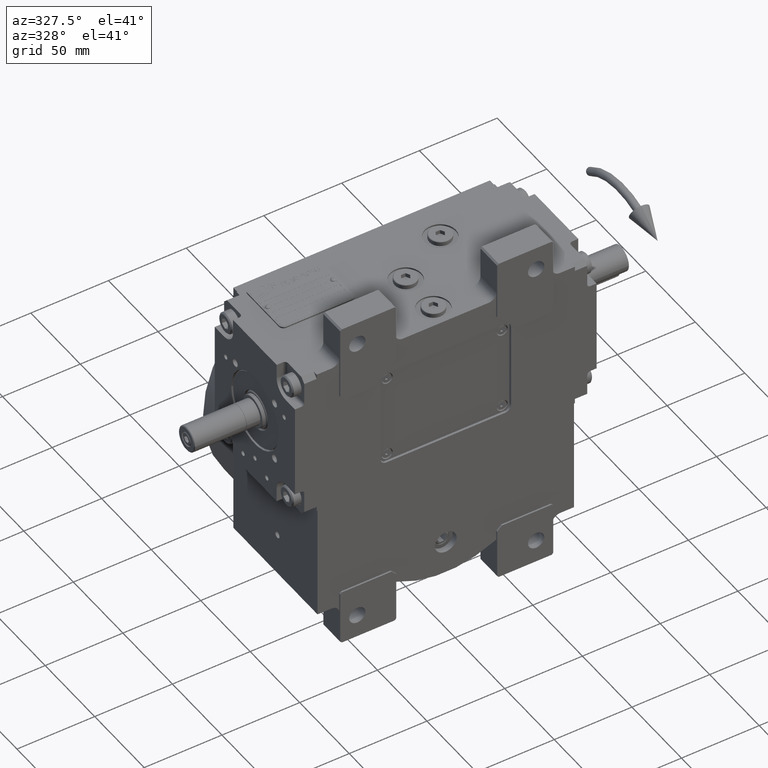
[diagram: clean part render]
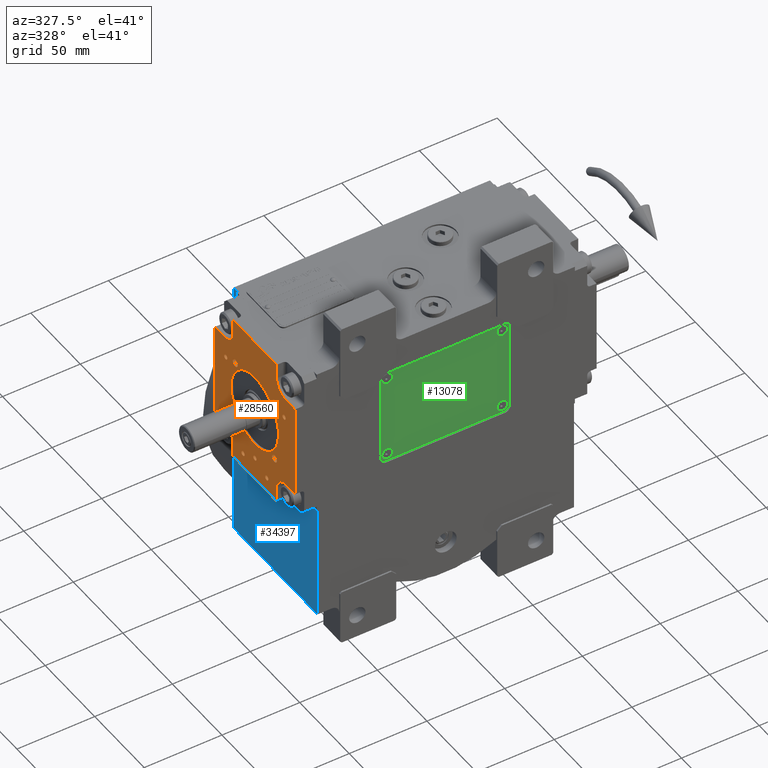
[diagram: same view with three faces highlighted in distinct colors, each labeled with its STEP entity id]
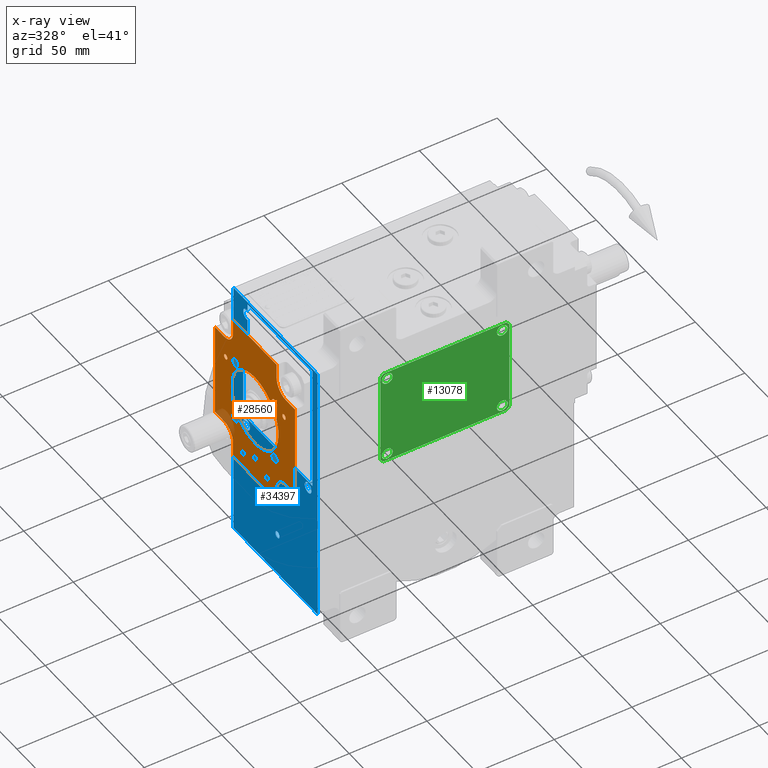
[diagram: x-ray of the same camera — body ghosted, the three highlighted faces saturated]
A machine part, auxiliary view with three faces highlighted in distinct colors.
The next image is the same camera in x-ray (body ghosted, the three faces saturated) — at least one of them is partly hidden behind the body in this view.
Their STEP definitions:

[orange] entity #28560 — the highlighted planar face has unit normal (1, 0, -0).
#445 = EDGE_CURVE ( 'NONE', #3773, #50390, #24556, .T. ) ;
#1062 = CARTESIAN_POINT ( 'NONE',  ( 17.98245215247005291, -14.00000000000006573, 15.76637152696365440 ) ) ;
#1295 = DIRECTION ( 'NONE',  ( -1.000000000000000000, 0.000000000000000000, -3.191891195797326947E-14 ) ) ;
#1405 = CARTESIAN_POINT ( 'NONE',  ( 12.00000000000125233, -13.99999999999998401, 39.50000000000051870 ) ) ;
#1768 = LINE ( 'NONE', #50887, #59823 ) ;
#1843 = CARTESIAN_POINT ( 'NONE',  ( 40.49999999999921130, -14.00000000000001243, -30.49999999999893063 ) ) ;
#1886 = EDGE_CURVE ( 'NONE', #24726, #62081, #14404, .T. ) ;
#1910 = EDGE_CURVE ( 'NONE', #10316, #36359, #11304, .T. ) ;
#1916 = EDGE_CURVE ( 'NONE', #7301, #54968, #16478, .T. ) ;
#1922 = FACE_BOUND ( 'NONE', #16428, .T. ) ;
#2206 = DIRECTION ( 'NONE',  ( -5.503425921419128482E-29, -1.000000000000000000, -4.218847493575605898E-15 ) ) ;
#2235 = FACE_BOUND ( 'NONE', #17031, .T. ) ;
#2514 = CARTESIAN_POINT ( 'NONE',  ( -17.29898987322268766, -13.99999999999999822, 19.79898987322276938 ) ) ;
#2747 = CARTESIAN_POINT ( 'NONE',  ( 1.075806110861778909E-12, -13.99999999999999822, 34.00000000000000000 ) ) ;
#3049 = CARTESIAN_POINT ( 'NONE',  ( 23.86322586898059939, -13.99999999999999822, -0.7869473592177533838 ) ) ;
#3231 = ORIENTED_EDGE ( 'NONE', *, *, #59989, .T. ) ;
#3644 = CARTESIAN_POINT ( 'NONE',  ( -31.09486372867142734, -13.99999999999999822, -17.00000000000104095 ) ) ;
#3701 = CIRCLE ( 'NONE', #52161, 2.499999999999998668 ) ;
#3773 = VERTEX_POINT ( 'NONE', #43173 ) ;
#4047 = VECTOR ( 'NONE', #20041, 1000.000000000000000 ) ;
#4063 = VECTOR ( 'NONE', #55564, 1000.000000000000000 ) ;
#4199 = ORIENTED_EDGE ( 'NONE', *, *, #54856, .F. ) ;
#4226 = LINE ( 'NONE', #43329, #41360 ) ;
#4611 = CARTESIAN_POINT ( 'NONE',  ( -27.79486372867142308, -13.99999999999999822, -17.00000000000104095 ) ) ;
#4634 = CARTESIAN_POINT ( 'NONE',  ( 17.98235770176433590, -13.99999999999993250, -15.76636675099964080 ) ) ;
#4654 = DIRECTION ( 'NONE',  ( -5.503425921419128482E-29, -1.000000000000000000, -4.218847493575605898E-15 ) ) ;
#4873 = EDGE_CURVE ( 'NONE', #33064, #51703, #50718, .T. ) ;
#4888 = EDGE_CURVE ( 'NONE', #45521, #38443, #63567, .T. ) ;
#5761 = AXIS2_PLACEMENT_3D ( 'NONE', #20071, #40420, #1295 ) ;
#5823 = DIRECTION ( 'NONE',  ( -5.503425921419128482E-29, -1.000000000000000000, -4.218847493575605898E-15 ) ) ;
#6027 = CARTESIAN_POINT ( 'NONE',  ( -19.79898987322400572, -13.99999999999999822, -19.79898987322440007 ) ) ;
#6042 = CARTESIAN_POINT ( 'NONE',  ( -29.44486372867142521, -13.99999999999999822, -17.00000000000104095 ) ) ;
#6159 = EDGE_CURVE ( 'NONE', #38443, #45521, #9986, .T. ) ;
#6182 = DIRECTION ( 'NONE',  ( 3.164135620181695509E-14, 4.218847493575605898E-15, 1.000000000000000000 ) ) ;
#6208 = EDGE_CURVE ( 'NONE', #35098, #36986, #16248, .T. ) ;
#6224 = CARTESIAN_POINT ( 'NONE',  ( 11.95575968379381138, -14.00000000000008882, 20.71225054030665902 ) ) ;
#6531 = CARTESIAN_POINT ( 'NONE',  ( 15.76639915680298110, -14.00000000000007638, 17.98227038497831032 ) ) ;
#6636 = EDGE_CURVE ( 'NONE', #22031, #32985, #35769, .T. ) ;
#6835 = CIRCLE ( 'NONE', #58434, 1.650000000000000355 ) ;
#6841 = CARTESIAN_POINT ( 'NONE',  ( -11.95544121681374250, -14.00000000000008704, 20.71254616477394350 ) ) ;
#6922 = ORIENTED_EDGE ( 'NONE', *, *, #62455, .F. ) ;
#7017 = CARTESIAN_POINT ( 'NONE',  ( -22.29898987322269122, -13.99999999999999822, 19.79898987322224713 ) ) ;
#7022 = DIRECTION ( 'NONE',  ( 1.000000000000000000, 0.000000000000000000, 3.364312195833806761E-14 ) ) ;
#7023 = EDGE_CURVE ( 'NONE', #26867, #32464, #13247, .T. ) ;
#7098 = CARTESIAN_POINT ( 'NONE',  ( -19.79898987322268766, -13.99999999999999822, 19.79898987322276938 ) ) ;
#7158 = CARTESIAN_POINT ( 'NONE',  ( 3.118947749979880335, -14.00000000000009948, 23.71108948655761139 ) ) ;
#7301 = VERTEX_POINT ( 'NONE', #9171 ) ;
#7365 = CARTESIAN_POINT ( 'NONE',  ( -29.44486372867142521, -13.99999999999999822, -17.00000000000104095 ) ) ;
#7412 = EDGE_CURVE ( 'NONE', #28004, #63764, #36812, .T. ) ;
#7975 = CARTESIAN_POINT ( 'NONE',  ( -40.50000000000079581, -14.00000000000001243, -30.50000000000106937 ) ) ;
#8087 = EDGE_LOOP ( 'NONE', ( #6922, #50259 ) ) ;
#8171 = VERTEX_POINT ( 'NONE', #25415 ) ;
#8353 = CARTESIAN_POINT ( 'NONE',  ( 40.50000000000105871, -13.99999999999999822, 30.50000000000131806 ) ) ;
#9171 = CARTESIAN_POINT ( 'NONE',  ( 22.00000000000158096, -13.99999999999947065, 49.00000000000079581 ) ) ;
#9463 = CARTESIAN_POINT ( 'NONE',  ( -21.44818571229940218, -14.00000000000004441, 10.57917287093044045 ) ) ;
#9643 = ORIENTED_EDGE ( 'NONE', *, *, #1916, .F. ) ;
#9986 = CIRCLE ( 'NONE', #22418, 2.499999999999998668 ) ;
#10256 = ORIENTED_EDGE ( 'NONE', *, *, #35742, .F. ) ;
#10298 = VECTOR ( 'NONE', #12030, 1000.000000000000000 ) ;
#10316 = VERTEX_POINT ( 'NONE', #3644 ) ;
#10420 = CARTESIAN_POINT ( 'NONE',  ( -23.80536274324692769, -14.00000000000000533, 1.958929982868521602 ) ) ;
#10563 = EDGE_CURVE ( 'NONE', #55243, #33064, #13195, .T. ) ;
#10759 = CARTESIAN_POINT ( 'NONE',  ( -31.00000000000118661, -14.00000000000001243, -39.50000000000103739 ) ) ;
#10849 = CIRCLE ( 'NONE', #30487, 9.000000000000001776 ) ;
#11169 = CARTESIAN_POINT ( 'NONE',  ( -15.76640134121094050, -13.99999999999991829, -17.98226844684481662 ) ) ;
#11228 = CARTESIAN_POINT ( 'NONE',  ( 31.00000000000105516, -13.99999999999999822, 30.50000000000105516 ) ) ;
#11304 = CIRCLE ( 'NONE', #21606, 1.649999999999998579 ) ;
#11467 = CARTESIAN_POINT ( 'NONE',  ( 22.64668168243263935, -13.99999999999996803, -7.685840235348913474 ) ) ;
#11521 = AXIS2_PLACEMENT_3D ( 'NONE', #38110, #63301, #19029 ) ;
#11536 = CARTESIAN_POINT ( 'NONE',  ( 22.29898987322269122, -13.99999999999999822, -19.79898987322281556 ) ) ;
#11693 = CARTESIAN_POINT ( 'NONE',  ( 23.70962956883353456, -14.00000000000001066, 3.125609056103649586 ) ) ;
#11762 = AXIS2_PLACEMENT_3D ( 'NONE', #52986, #46856, #62071 ) ;
#11797 = CARTESIAN_POINT ( 'NONE',  ( -23.24092231173641920, -13.99999999999997691, -5.420263831054000114 ) ) ;
#12030 = DIRECTION ( 'NONE',  ( -3.164135620181695509E-14, -4.218847493575605898E-15, -1.000000000000000000 ) ) ;
#12270 = CARTESIAN_POINT ( 'NONE',  ( -30.99999999999881339, -13.99999999999998401, 39.49999999999894840 ) ) ;
#12330 = CARTESIAN_POINT ( 'NONE',  ( -14.56088801808539479, -14.00000000000007816, 18.97165839184611968 ) ) ;
#12580 = DIRECTION ( 'NONE',  ( -1.885098490155163295E-28, 1.000000000000000000, 4.218847493575605898E-15 ) ) ;
#13195 = LINE ( 'NONE', #38088, #45374 ) ;
#13247 = B_SPLINE_CURVE_WITH_KNOTS ( 'NONE', 3,
 ( #59982, #40283, #31220, #41530, #55763, #36378, #26993, #35768, #11169, #20896, #26365, #51525, #56073, #36075, #61261, #46674, #11797, #50585, #50273, #16988, #26046, #30593 ),
 .UNSPECIFIED., .F., .F.,
 ( 4, 2, 2, 2, 2, 2, 2, 1, 1, 2, 2, 4 ),
 ( 0.5000000711331490377, 0.5625000622415055052, 0.6250000533498618616, 0.6875000444582182180, 0.7500000355665745744, 0.8125000266749309308, 0.8750000177832871762, 0.9062500133374653544, 0.9218750111145543880, 0.9296875100030987937, 0.9375000088916434215, 1.000000000000000000 ),
 .UNSPECIFIED. ) ;
#13386 = CARTESIAN_POINT ( 'NONE',  ( 11.95543814826821283, -13.99999999999991296, -20.71254795357626932 ) ) ;
#13543 = LINE ( 'NONE', #8353, #20892 ) ;
#13621 = EDGE_CURVE ( 'NONE', #56446, #15673, #46751, .T. ) ;
#14307 = CIRCLE ( 'NONE', #51408, 2.499999999999998668 ) ;
#14333 = CARTESIAN_POINT ( 'NONE',  ( -22.64668203140376690, -14.00000000000002842, 7.685839165587858623 ) ) ;
#14340 = CARTESIAN_POINT ( 'NONE',  ( 10.57953246189507901, -13.99999999999991118, -21.44790635888609387 ) ) ;
#14404 = CIRCLE ( 'NONE', #44285, 1.649999999999998579 ) ;
#14654 = CARTESIAN_POINT ( 'NONE',  ( 12.00000000000125233, -13.99999999999998401, 39.50000000000051870 ) ) ;
#14897 = EDGE_CURVE ( 'NONE', #50390, #3773, #6835, .T. ) ;
#15171 = CARTESIAN_POINT ( 'NONE',  ( -40.50000000000079581, -14.00000000000001243, -30.50000000000106937 ) ) ;
#15673 = VERTEX_POINT ( 'NONE', #31008 ) ;
#15855 = LINE ( 'NONE', #35572, #52298 ) ;
#16163 = DIRECTION ( 'NONE',  ( -1.000000000000000000, 0.000000000000000000, -3.154042683594197586E-14 ) ) ;
#16248 = CIRCLE ( 'NONE', #38944, 9.000000000000001776 ) ;
#16272 = DIRECTION ( 'NONE',  ( 3.122502256758252139E-14, 4.240435163498860822E-15, 1.000000000000000000 ) ) ;
#16428 = EDGE_LOOP ( 'NONE', ( #38419, #57690 ) ) ;
#16478 = LINE ( 'NONE', #30710, #4063 ) ;
#16643 = VERTEX_POINT ( 'NONE', #49089 ) ;
#16884 = CARTESIAN_POINT ( 'NONE',  ( -20.71231301861909557, -14.00000000000004796, 11.95552608799904526 ) ) ;
#16894 = LINE ( 'NONE', #56300, #10298 ) ;
#16988 = CARTESIAN_POINT ( 'NONE',  ( -23.70962961231632349, -13.99999999999998401, -3.125608614640653204 ) ) ;
#17031 = EDGE_LOOP ( 'NONE', ( #60587, #19322, #55724 ) ) ;
#17060 = CARTESIAN_POINT ( 'NONE',  ( -11.99999999999874767, -13.99999999999998401, 39.49999999999947420 ) ) ;
#17120 = ORIENTED_EDGE ( 'NONE', *, *, #20200, .T. ) ;
#17202 = CARTESIAN_POINT ( 'NONE',  ( 18.97164947463520690, -14.00000000000005684, 14.56102366058751940 ) ) ;
#17429 = ORIENTED_EDGE ( 'NONE', *, *, #59984, .F. ) ;
#17450 = FACE_BOUND ( 'NONE', #36041, .T. ) ;
#17511 = EDGE_CURVE ( 'NONE', #42656, #44121, #3701, .T. ) ;
#17762 = FACE_BOUND ( 'NONE', #35877, .T. ) ;
#17923 = CARTESIAN_POINT ( 'NONE',  ( 23.09942915084177528, -13.99999999999997335, -6.192947907790472328 ) ) ;
#18709 = EDGE_CURVE ( 'NONE', #63764, #28004, #27284, .T. ) ;
#18882 = VECTOR ( 'NONE', #26114, 1000.000000000000000 ) ;
#19029 = DIRECTION ( 'NONE',  ( 1.000000000000000000, 0.000000000000000000, 3.053113317719182379E-14 ) ) ;
#19081 = CARTESIAN_POINT ( 'NONE',  ( 22.29898987322400927, -13.99999999999999822, 19.79898987322387782 ) ) ;
#19186 = VERTEX_POINT ( 'NONE', #57066 ) ;
#19322 = ORIENTED_EDGE ( 'NONE', *, *, #7023, .T. ) ;
#20041 = DIRECTION ( 'NONE',  ( 3.164135620181695509E-14, 4.218847493575605898E-15, 1.000000000000000000 ) ) ;
#20071 = CARTESIAN_POINT ( 'NONE',  ( -19.79898987322268766, -13.99999999999999822, 19.79898987322276938 ) ) ;
#20152 = CARTESIAN_POINT ( 'NONE',  ( -23.86322586908650578, -14.00000000000000178, 0.7869472472479460690 ) ) ;
#20200 = EDGE_CURVE ( 'NONE', #8171, #19186, #48333, .T. ) ;
#20581 = ORIENTED_EDGE ( 'NONE', *, *, #6208, .T. ) ;
#20725 = CARTESIAN_POINT ( 'NONE',  ( -22.00000000000144951, -14.00000000000052580, -49.00000000000104450 ) ) ;
#20759 = LINE ( 'NONE', #21686, #29268 ) ;
#20799 = CARTESIAN_POINT ( 'NONE',  ( 23.86245126994554866, -14.00000000000000178, 1.574215321675356716 ) ) ;
#20892 = VECTOR ( 'NONE', #57178, 1000.000000000000000 ) ;
#20896 = CARTESIAN_POINT ( 'NONE',  ( -17.98245375129773649, -13.99999999999993783, -15.76636968212423007 ) ) ;
#21111 = CARTESIAN_POINT ( 'NONE',  ( 1.566768470595965690, -14.00000000000009770, 23.86400311483101788 ) ) ;
#21606 = AXIS2_PLACEMENT_3D ( 'NONE', #7365, #26800, #35880 ) ;
#21686 = CARTESIAN_POINT ( 'NONE',  ( 21.99999999999854694, -14.00000000000052580, -48.99999999999947420 ) ) ;
#21732 = CARTESIAN_POINT ( 'NONE',  ( -17.98235932460681852, -14.00000000000006573, 15.76636488206855091 ) ) ;
#21983 = DIRECTION ( 'NONE',  ( 5.503425921419128482E-29, 1.000000000000000000, 4.218847493575605898E-15 ) ) ;
#22015 = EDGE_LOOP ( 'NONE', ( #60673, #57564 ) ) ;
#22031 = VERTEX_POINT ( 'NONE', #23566 ) ;
#22044 = CARTESIAN_POINT ( 'NONE',  ( -1.566779169208811329, -14.00000000000009948, 23.86393717191058528 ) ) ;
#22418 = AXIS2_PLACEMENT_3D ( 'NONE', #7098, #56871, #46836 ) ;
#22456 = CARTESIAN_POINT ( 'NONE',  ( 23.54577769822292765, -13.99999999999997868, -3.887975449872091982 ) ) ;
#22511 = DIRECTION ( 'NONE',  ( 1.000000000000000000, 5.501979271014792412E-29, 3.164135620181695509E-14 ) ) ;
#22769 = CARTESIAN_POINT ( 'NONE',  ( 23.44379405512641057, -13.99999999999998046, -4.461832952019621601 ) ) ;
#22928 = DIRECTION ( 'NONE',  ( 1.000000000000000000, 5.501979271014792412E-29, 3.164135620181695509E-14 ) ) ;
#23113 = DIRECTION ( 'NONE',  ( -5.503425921419128482E-29, -1.000000000000000000, -4.218847493575605898E-15 ) ) ;
#23338 = ORIENTED_EDGE ( 'NONE', *, *, #6636, .F. ) ;
#23411 = CARTESIAN_POINT ( 'NONE',  ( -2.721902582428799246E-10, -13.99999927803739830, -23.86397666347576063 ) ) ;
#23566 = CARTESIAN_POINT ( 'NONE',  ( -10.34999999999874731, -13.99999999999998401, 39.49999999999947420 ) ) ;
#23681 = AXIS2_PLACEMENT_3D ( 'NONE', #31642, #2206, #60420 ) ;
#24048 = CARTESIAN_POINT ( 'NONE',  ( 18.97211941539629620, -13.99999999999994138, -14.56041862828625000 ) ) ;
#24204 = ORIENTED_EDGE ( 'NONE', *, *, #38287, .F. ) ;
#24556 = CIRCLE ( 'NONE', #32821, 1.650000000000000355 ) ;
#24686 = CIRCLE ( 'NONE', #23681, 2.499999999999998668 ) ;
#24726 = VERTEX_POINT ( 'NONE', #50433 ) ;
#24981 = CARTESIAN_POINT ( 'NONE',  ( -23.86397420030304772, -13.99999855607482502, -1.113406727926147255E-07 ) ) ;
#25285 = CARTESIAN_POINT ( 'NONE',  ( -21.99999999999841549, -13.99999999999947065, 48.99999999999947420 ) ) ;
#25415 = CARTESIAN_POINT ( 'NONE',  ( 21.99999999999881339, -14.00000000000001243, -39.49999999999948130 ) ) ;
#25432 = ORIENTED_EDGE ( 'NONE', *, *, #56386, .T. ) ;
#25750 = DIRECTION ( 'NONE',  ( -5.503425921419128482E-29, -1.000000000000000000, -4.218847493575605898E-15 ) ) ;
#25807 = DIRECTION ( 'NONE',  ( -5.503425921419128482E-29, -1.000000000000000000, -4.218847493575605898E-15 ) ) ;
#25947 = CARTESIAN_POINT ( 'NONE',  ( 23.32664490037722160, -14.00000000000002132, 5.038317025994265563 ) ) ;
#26046 = CARTESIAN_POINT ( 'NONE',  ( -23.86245127016167089, -13.99999999999998579, -1.574215097676659125 ) ) ;
#26114 = DIRECTION ( 'NONE',  ( -1.000000000000000000, -5.501979271014792412E-29, -3.164135620181695509E-14 ) ) ;
#26261 = CARTESIAN_POINT ( 'NONE',  ( -3.119331459816392371, -14.00000000000010125, 23.71108225105577461 ) ) ;
#26295 = DIRECTION ( 'NONE',  ( -5.503425921419128482E-29, -1.000000000000000000, -4.218847493575605898E-15 ) ) ;
#26365 = CARTESIAN_POINT ( 'NONE',  ( -18.97165082881190656, -13.99999999999993960, -14.56102186836356793 ) ) ;
#26566 = CARTESIAN_POINT ( 'NONE',  ( 23.24092213513677052, -14.00000000000002487, 5.420264589931599097 ) ) ;
#26587 = CARTESIAN_POINT ( 'NONE',  ( -31.00000000000092371, -14.00000000000001243, -30.50000000000105516 ) ) ;
#26800 = DIRECTION ( 'NONE',  ( -5.503425921419128482E-29, -1.000000000000000000, -4.218847493575605898E-15 ) ) ;
#26849 = DIRECTION ( 'NONE',  ( -1.000000000000000000, 0.000000000000000000, -3.053113317719182379E-14 ) ) ;
#26867 = VERTEX_POINT ( 'NONE', #40415 ) ;
#26993 = CARTESIAN_POINT ( 'NONE',  ( -11.95576278632400147, -13.99999999999991118, -20.71224872910295289 ) ) ;
#27137 = ORIENTED_EDGE ( 'NONE', *, *, #4888, .F. ) ;
#27230 = EDGE_CURVE ( 'NONE', #52970, #38900, #53874, .T. ) ;
#27284 = CIRCLE ( 'NONE', #60320, 2.499999999999998668 ) ;
#27538 = CARTESIAN_POINT ( 'NONE',  ( 17.29898987322400927, -13.99999999999999822, 19.79898987322387072 ) ) ;
#27774 = FACE_BOUND ( 'NONE', #22015, .T. ) ;
#27987 = DIRECTION ( 'NONE',  ( -5.503425921419128482E-29, -1.000000000000000000, -4.218847493575605898E-15 ) ) ;
#28004 = VERTEX_POINT ( 'NONE', #27538 ) ;
#28543 = ORIENTED_EDGE ( 'NONE', *, *, #18709, .F. ) ;
#28560 = ADVANCED_FACE ( 'NONE', ( #62045, #1922, #17762, #52305, #2235, #27774, #32009, #47458, #51032, #17450, #37163 ), #61077, .F. ) ;
#28623 = DIRECTION ( 'NONE',  ( -1.000000000000000000, 0.000000000000000000, -3.191891195797326947E-14 ) ) ;
#29196 = CARTESIAN_POINT ( 'NONE',  ( -23.63854925147817809, -14.00000000000001599, 3.311476437734021339 ) ) ;
#29268 = VECTOR ( 'NONE', #6182, 1000.000000000000000 ) ;
#29583 = AXIS2_PLACEMENT_3D ( 'NONE', #2747, #23113, #42175 ) ;
#30135 = EDGE_LOOP ( 'NONE', ( #45149, #52770 ) ) ;
#30154 = CARTESIAN_POINT ( 'NONE',  ( -23.47920126455802148, -14.00000000000001599, 4.271604035881730432 ) ) ;
#30393 = CARTESIAN_POINT ( 'NONE',  ( 40.49999999999921130, -14.00000000000001243, -30.49999999999893063 ) ) ;
#30486 = CARTESIAN_POINT ( 'NONE',  ( -23.54577778822958223, -14.00000000000001776, 3.887974903385271741 ) ) ;
#30487 = AXIS2_PLACEMENT_3D ( 'NONE', #10759, #40825, #16272 ) ;
#30593 = CARTESIAN_POINT ( 'NONE',  ( -23.86397420030304772, -13.99999855607482502, -1.113406727926147255E-07 ) ) ;
#30594 = AXIS2_PLACEMENT_3D ( 'NONE', #17060, #25807, #7022 ) ;
#30646 = AXIS2_PLACEMENT_3D ( 'NONE', #58622, #4654, #26849 ) ;
#30710 = CARTESIAN_POINT ( 'NONE',  ( 22.00000000000158096, -13.99999999999947065, 49.00000000000079581 ) ) ;
#30717 = DIRECTION ( 'NONE',  ( 1.000000000000000000, 5.501979271014792412E-29, 3.164135620181695509E-14 ) ) ;
#31008 = CARTESIAN_POINT ( 'NONE',  ( 1.650000000001079492, -13.99999999999999822, 34.00000000000000000 ) ) ;
#31120 = CARTESIAN_POINT ( 'NONE',  ( 7.685169508964821539, -14.00000000000009770, 22.64680274495818324 ) ) ;
#31204 = CARTESIAN_POINT ( 'NONE',  ( 21.44818503823666944, -13.99999999999995381, -10.57917427091260798 ) ) ;
#31220 = CARTESIAN_POINT ( 'NONE',  ( -3.118952648202186317, -13.99999999999989875, -23.71108882256597639 ) ) ;
#31428 = CARTESIAN_POINT ( 'NONE',  ( 22.74139545049669309, -14.00000000000003020, 7.307390402314892341 ) ) ;
#31517 = DIRECTION ( 'NONE',  ( 1.000000000000000000, 5.501979271014792412E-29, 3.164135620181695509E-14 ) ) ;
#31642 = CARTESIAN_POINT ( 'NONE',  ( 19.79898987322268766, -13.99999999999999822, -19.79898987322281556 ) ) ;
#31747 = CARTESIAN_POINT ( 'NONE',  ( -10.57953588485660212, -14.00000000000008882, 21.44790465845243332 ) ) ;
#31855 = CIRCLE ( 'NONE', #61797, 1.649999999999998579 ) ;
#32009 = FACE_BOUND ( 'NONE', #52046, .T. ) ;
#32154 = CARTESIAN_POINT ( 'NONE',  ( 23.86397420030310101, -13.99999855607482502, 1.113406727926147255E-07 ) ) ;
#32464 = VERTEX_POINT ( 'NONE', #59763 ) ;
#32599 = DIRECTION ( 'NONE',  ( -5.503425921419128482E-29, -1.000000000000000000, -4.218847493575605898E-15 ) ) ;
#32626 = VERTEX_POINT ( 'NONE', #41952 ) ;
#32821 = AXIS2_PLACEMENT_3D ( 'NONE', #14654, #48251, #58289 ) ;
#32850 = CARTESIAN_POINT ( 'NONE',  ( -40.49999999999894840, -13.99999999999999822, 30.49999999999868194 ) ) ;
#32985 = VERTEX_POINT ( 'NONE', #56980 ) ;
#33064 = VERTEX_POINT ( 'NONE', #42116 ) ;
#33799 = CARTESIAN_POINT ( 'NONE',  ( -19.79898987322400572, -13.99999999999999822, -19.79898987322440007 ) ) ;
#34109 = EDGE_CURVE ( 'NONE', #15673, #56446, #34904, .T. ) ;
#34861 = CARTESIAN_POINT ( 'NONE',  ( -17.29898987322400927, -13.99999999999999822, -19.79898987322387072 ) ) ;
#34904 = CIRCLE ( 'NONE', #29583, 1.649999999999999911 ) ;
#34953 = AXIS2_PLACEMENT_3D ( 'NONE', #36891, #38814, #62724 ) ;
#35093 = CIRCLE ( 'NONE', #57770, 1.649999999999998579 ) ;
#35098 = VERTEX_POINT ( 'NONE', #43945 ) ;
#35117 = EDGE_CURVE ( 'NONE', #51011, #16643, #60092, .T. ) ;
#35148 = EDGE_CURVE ( 'NONE', #38900, #52970, #24686, .T. ) ;
#35247 = CARTESIAN_POINT ( 'NONE',  ( -11.99999999999874767, -13.99999999999998401, 39.49999999999947420 ) ) ;
#35512 = LINE ( 'NONE', #1843, #18882 ) ;
#35572 = CARTESIAN_POINT ( 'NONE',  ( -40.50000000000079581, -14.00000000000001243, -30.50000000000106937 ) ) ;
#35742 = EDGE_CURVE ( 'NONE', #16643, #36986, #52197, .T. ) ;
#35768 = CARTESIAN_POINT ( 'NONE',  ( -14.56055017842635557, -13.99999999999991473, -18.97195719011450521 ) ) ;
#35769 = CIRCLE ( 'NONE', #30594, 1.650000000000000355 ) ;
#35858 = B_SPLINE_CURVE_WITH_KNOTS ( 'NONE', 3,
 ( #24981, #20152, #10420, #29196, #30486, #30154, #50182, #63458, #14333, #9463, #16884, #60530, #21732, #56289, #12330, #6841, #31747, #45635, #50487, #26261, #22044, #21111, #7158, #45948, #31120, #51736, #6224, #56610, #6531, #1062, #17202, #41127, #40499, #46265, #31428, #45329, #26566, #25947, #51415, #11693, #20799, #60201 ),
 .UNSPECIFIED., .F., .F.,
 ( 4, 1, 1, 2, 2, 2, 2, 2, 2, 2, 2, 2, 2, 2, 2, 2, 2, 2, 1, 1, 2, 2, 4 ),
 ( 0.000000000000000000, 0.03125000000000006245, 0.04687500000000011102, 0.05468750000000012490, 0.06250000000000013878, 0.1250000000000001388, 0.1875000000000001110, 0.2500000000000001110, 0.3125000000000000555, 0.3750000000000000000, 0.4375000000000000555, 0.5000000000000000000, 0.5625000000000000000, 0.6250000000000000000, 0.6875000000000000000, 0.7500000000000000000, 0.8125000000000001110, 0.8750000000000001110, 0.9062500000000000000, 0.9218750000000001110, 0.9296875000000001110, 0.9375000000000001110, 1.000000000000000000 ),
 .UNSPECIFIED. ) ;
#35877 = EDGE_LOOP ( 'NONE', ( #57964, #61447 ) ) ;
#35880 = DIRECTION ( 'NONE',  ( -1.000000000000000000, 0.000000000000000000, -1.892425610156518551E-14 ) ) ;
#35917 = DIRECTION ( 'NONE',  ( 1.000000000000000000, 0.000000000000000000, 3.161051667335514589E-14 ) ) ;
#36041 = EDGE_LOOP ( 'NONE', ( #28543, #41647 ) ) ;
#36075 = CARTESIAN_POINT ( 'NONE',  ( -22.34697688814388883, -13.99999999999996447, -8.409466773888247815 ) ) ;
#36359 = VERTEX_POINT ( 'NONE', #4611 ) ;
#36378 = CARTESIAN_POINT ( 'NONE',  ( -10.57957418679682782, -13.99999999999990763, -21.44796135337859511 ) ) ;
#36668 = ORIENTED_EDGE ( 'NONE', *, *, #4873, .F. ) ;
#36812 = CIRCLE ( 'NONE', #30646, 2.499999999999998668 ) ;
#36871 = AXIS2_PLACEMENT_3D ( 'NONE', #35247, #5823, #55255 ) ;
#36891 = CARTESIAN_POINT ( 'NONE',  ( 30.99999999999881339, -14.00000000000001243, -39.49999999999895550 ) ) ;
#36986 = VERTEX_POINT ( 'NONE', #54849 ) ;
#37163 = FACE_BOUND ( 'NONE', #60218, .T. ) ;
#37434 = DIRECTION ( 'NONE',  ( 1.000000000000000000, 0.000000000000000000, 3.053113317719182379E-14 ) ) ;
#38088 = CARTESIAN_POINT ( 'NONE',  ( 21.99999999999854694, -14.00000000000052580, -48.99999999999947420 ) ) ;
#38110 = CARTESIAN_POINT ( 'NONE',  ( 19.79898987322268766, -13.99999999999999822, -19.79898987322277648 ) ) ;
#38155 = VECTOR ( 'NONE', #22511, 1000.000000000000000 ) ;
#38179 = ORIENTED_EDGE ( 'NONE', *, *, #35148, .F. ) ;
#38273 = CARTESIAN_POINT ( 'NONE',  ( 14.56088552662167324, -13.99999999999991829, -18.97166031808826148 ) ) ;
#38287 = EDGE_CURVE ( 'NONE', #51002, #47230, #4226, .T. ) ;
#38419 = ORIENTED_EDGE ( 'NONE', *, *, #61397, .F. ) ;
#38443 = VERTEX_POINT ( 'NONE', #2514 ) ;
#38814 = DIRECTION ( 'NONE',  ( 5.503425921419128482E-29, 1.000000000000000000, 4.218847493575605898E-15 ) ) ;
#38900 = VERTEX_POINT ( 'NONE', #59838 ) ;
#38944 = AXIS2_PLACEMENT_3D ( 'NONE', #12270, #21983, #35917 ) ;
#39149 = DIRECTION ( 'NONE',  ( -3.164135620181695509E-14, -4.218847493575605898E-15, -1.000000000000000000 ) ) ;
#40148 = ORIENTED_EDGE ( 'NONE', *, *, #27230, .F. ) ;
#40283 = CARTESIAN_POINT ( 'NONE',  ( -1.566773563360464472, -13.99999999999990052, -23.86400276692702249 ) ) ;
#40415 = CARTESIAN_POINT ( 'NONE',  ( -2.721902582428799246E-10, -13.99999927803739830, -23.86397666347576063 ) ) ;
#40420 = DIRECTION ( 'NONE',  ( -5.503425921419128482E-29, -1.000000000000000000, -4.218847493575605898E-15 ) ) ;
#40499 = CARTESIAN_POINT ( 'NONE',  ( 21.44833792708043774, -14.00000000000004441, 10.57861081113262358 ) ) ;
#40605 = AXIS2_PLACEMENT_3D ( 'NONE', #43537, #43856, #53872 ) ;
#40825 = DIRECTION ( 'NONE',  ( 5.503425921419128482E-29, 1.000000000000000000, 4.218847493575605898E-15 ) ) ;
#41127 = CARTESIAN_POINT ( 'NONE',  ( 20.71277833345415331, -14.00000000000004974, 11.95494346992362367 ) ) ;
#41360 = VECTOR ( 'NONE', #39149, 1000.000000000000000 ) ;
#41530 = CARTESIAN_POINT ( 'NONE',  ( -6.192332379422575528, -13.99999999999989875, -23.09972376668353533 ) ) ;
#41647 = ORIENTED_EDGE ( 'NONE', *, *, #7412, .F. ) ;
#41759 = CARTESIAN_POINT ( 'NONE',  ( 21.99999999999854694, -14.00000000000052580, -48.99999999999947420 ) ) ;
#41952 = CARTESIAN_POINT ( 'NONE',  ( 23.86397420030310101, -13.99999855607482502, 1.113406727926147255E-07 ) ) ;
#42045 = EDGE_LOOP ( 'NONE', ( #40148, #38179 ) ) ;
#42116 = CARTESIAN_POINT ( 'NONE',  ( -22.00000000000144951, -14.00000000000052580, -49.00000000000104450 ) ) ;
#42143 = VERTEX_POINT ( 'NONE', #25285 ) ;
#42175 = DIRECTION ( 'NONE',  ( 1.000000000000000000, 0.000000000000000000, 3.364312195833808023E-14 ) ) ;
#42274 = CARTESIAN_POINT ( 'NONE',  ( 19.79898987322400572, -13.99999999999999822, 19.79898987322387782 ) ) ;
#42543 = CARTESIAN_POINT ( 'NONE',  ( 40.50000000000105871, -13.99999999999999822, 30.50000000000131806 ) ) ;
#42656 = VERTEX_POINT ( 'NONE', #49101 ) ;
#42773 = CARTESIAN_POINT ( 'NONE',  ( 1.566774008614296498, -13.99999999999990052, -23.86393752002924984 ) ) ;
#43173 = CARTESIAN_POINT ( 'NONE',  ( 10.35000000000125198, -13.99999999999998401, 39.50000000000026290 ) ) ;
#43329 = CARTESIAN_POINT ( 'NONE',  ( 40.50000000000105871, -13.99999999999999822, 30.50000000000131806 ) ) ;
#43537 = CARTESIAN_POINT ( 'NONE',  ( 1.075806110861778909E-12, -13.99999999999999822, 34.00000000000000000 ) ) ;
#43548 = ORIENTED_EDGE ( 'NONE', *, *, #56313, .T. ) ;
#43856 = DIRECTION ( 'NONE',  ( -5.503425921419128482E-29, -1.000000000000000000, -4.218847493575605898E-15 ) ) ;
#43945 = CARTESIAN_POINT ( 'NONE',  ( -21.99999999999881339, -13.99999999999998401, 39.49999999999946709 ) ) ;
#44121 = VERTEX_POINT ( 'NONE', #34861 ) ;
#44285 = AXIS2_PLACEMENT_3D ( 'NONE', #60426, #61377, #16163 ) ;
#44429 = ORIENTED_EDGE ( 'NONE', *, *, #35117, .F. ) ;
#44557 = ORIENTED_EDGE ( 'NONE', *, *, #49481, .F. ) ;
#44558 = EDGE_CURVE ( 'NONE', #55285, #51703, #10849, .T. ) ;
#44792 = CIRCLE ( 'NONE', #11762, 9.000000000000001776 ) ;
#45149 = ORIENTED_EDGE ( 'NONE', *, *, #61160, .F. ) ;
#45329 = CARTESIAN_POINT ( 'NONE',  ( 23.10547545258854285, -14.00000000000002309, 5.990997677066305371 ) ) ;
#45374 = VECTOR ( 'NONE', #57792, 1000.000000000000000 ) ;
#45455 = DIRECTION ( 'NONE',  ( 1.000000000000000000, 0.000000000000000000, 3.995120732552650065E-14 ) ) ;
#45521 = VERTEX_POINT ( 'NONE', #7017 ) ;
#45635 = CARTESIAN_POINT ( 'NONE',  ( -7.685223904494235647, -14.00000000000009770, 22.64685083059218940 ) ) ;
#45948 = CARTESIAN_POINT ( 'NONE',  ( 6.192328095637778418, -14.00000000000009415, 23.09972492920077514 ) ) ;
#46265 = CARTESIAN_POINT ( 'NONE',  ( 22.34697646102475233, -14.00000000000003730, 8.409467918701041711 ) ) ;
#46674 = CARTESIAN_POINT ( 'NONE',  ( -23.10547566701052347, -13.99999999999997513, -5.990996842902175601 ) ) ;
#46751 = CIRCLE ( 'NONE', #40605, 1.649999999999999911 ) ;
#46836 = DIRECTION ( 'NONE',  ( 1.000000000000000000, 0.000000000000000000, 3.191891195797326947E-14 ) ) ;
#46856 = DIRECTION ( 'NONE',  ( 5.503425921419128482E-29, 1.000000000000000000, 4.218847493575605898E-15 ) ) ;
#46982 = CARTESIAN_POINT ( 'NONE',  ( 23.63854918778859115, -13.99999999999998046, -3.311476904161730683 ) ) ;
#47051 = CARTESIAN_POINT ( 'NONE',  ( -22.00000000000118661, -14.00000000000001243, -39.50000000000103739 ) ) ;
#47230 = VERTEX_POINT ( 'NONE', #30393 ) ;
#47458 = FACE_BOUND ( 'NONE', #30135, .T. ) ;
#47611 = CARTESIAN_POINT ( 'NONE',  ( 15.76650524893555705, -13.99999999999992184, -17.98226651476916871 ) ) ;
#48243 = EDGE_LOOP ( 'NONE', ( #44557, #53599, #20581, #10256, #44429, #3231, #51479, #36668, #59492, #43548, #17120, #4199, #24204, #62655, #25432, #9643 ) ) ;
#48249 = CARTESIAN_POINT ( 'NONE',  ( 6.191961161476445596, -13.99999999999990052, -23.09972976944129286 ) ) ;
#48251 = DIRECTION ( 'NONE',  ( -5.503425921419128482E-29, -1.000000000000000000, -4.218847493575605898E-15 ) ) ;
#48333 = CIRCLE ( 'NONE', #34953, 9.000000000000001776 ) ;
#48552 = EDGE_CURVE ( 'NONE', #32464, #32626, #35858, .T. ) ;
#48600 = DIRECTION ( 'NONE',  ( -5.503425921419128482E-29, -1.000000000000000000, -4.218847493575605898E-15 ) ) ;
#48905 = CARTESIAN_POINT ( 'NONE',  ( 22.00000000000118661, -13.99999999999998401, 39.50000000000078870 ) ) ;
#49089 = CARTESIAN_POINT ( 'NONE',  ( -40.49999999999894840, -13.99999999999999822, 30.49999999999868194 ) ) ;
#49101 = CARTESIAN_POINT ( 'NONE',  ( -22.29898987322400927, -13.99999999999999822, -19.79898987322440007 ) ) ;
#49481 = EDGE_CURVE ( 'NONE', #42143, #7301, #1768, .T. ) ;
#49929 = B_SPLINE_CURVE_WITH_KNOTS ( 'NONE', 3,
 ( #32154, #3049, #51815, #46982, #22456, #61886, #22769, #17923, #11467, #31204, #50883, #24048, #4634, #47611, #38273, #13386, #14340, #57965, #48249, #52782, #42773, #23411 ),
 .UNSPECIFIED., .F., .F.,
 ( 4, 1, 1, 2, 2, 2, 2, 2, 2, 2, 2, 4 ),
 ( 0.000000000000000000, 0.03125000444582187037, 0.04687500666873282290, 0.05468750778018829917, 0.06250000889164376849, 0.1250000177832873982, 0.1875000266749310140, 0.2500000355665745744, 0.3125000444582182180, 0.3750000533498617505, 0.4375000622415053941, 0.5000000711331490377 ),
 .UNSPECIFIED. ) ;
#50061 = EDGE_CURVE ( 'NONE', #42143, #35098, #16894, .T. ) ;
#50182 = CARTESIAN_POINT ( 'NONE',  ( -23.44379417511132502, -14.00000000000001954, 4.461832321008280644 ) ) ;
#50259 = ORIENTED_EDGE ( 'NONE', *, *, #1910, .F. ) ;
#50273 = CARTESIAN_POINT ( 'NONE',  ( -23.36748971678184361, -13.99999999999997691, -4.845252042924244940 ) ) ;
#50287 = DIRECTION ( 'NONE',  ( -5.503425921419128482E-29, -1.000000000000000000, -4.218847493575605898E-15 ) ) ;
#50390 = VERTEX_POINT ( 'NONE', #54002 ) ;
#50433 = CARTESIAN_POINT ( 'NONE',  ( 27.79486372867037147, -13.99999999999999822, -16.99999999999894484 ) ) ;
#50487 = CARTESIAN_POINT ( 'NONE',  ( -6.191965501752926926, -14.00000000000009237, 23.09972859531173128 ) ) ;
#50585 = CARTESIAN_POINT ( 'NONE',  ( -23.32664505306333425, -13.99999999999997868, -5.038316317723490201 ) ) ;
#50718 = LINE ( 'NONE', #20725, #62554 ) ;
#50883 = CARTESIAN_POINT ( 'NONE',  ( 20.71231213005231808, -13.99999999999995026, -11.95552765314612920 ) ) ;
#50887 = CARTESIAN_POINT ( 'NONE',  ( -21.99999999999841549, -13.99999999999947065, 48.99999999999947420 ) ) ;
#50909 = DIRECTION ( 'NONE',  ( 1.000000000000000000, 0.000000000000000000, 3.191891195797326947E-14 ) ) ;
#51002 = VERTEX_POINT ( 'NONE', #42543 ) ;
#51011 = VERTEX_POINT ( 'NONE', #7975 ) ;
#51032 = FACE_BOUND ( 'NONE', #42045, .T. ) ;
#51408 = AXIS2_PLACEMENT_3D ( 'NONE', #6027, #50287, #50909 ) ;
#51415 = CARTESIAN_POINT ( 'NONE',  ( 23.36748957619223077, -14.00000000000001776, 4.845252721683388941 ) ) ;
#51479 = ORIENTED_EDGE ( 'NONE', *, *, #44558, .T. ) ;
#51525 = CARTESIAN_POINT ( 'NONE',  ( -20.71277920861292543, -13.99999999999994493, -11.95494192533105249 ) ) ;
#51703 = VERTEX_POINT ( 'NONE', #47051 ) ;
#51736 = CARTESIAN_POINT ( 'NONE',  ( 10.57957080955140761, -14.00000000000008704, 21.44796303468499232 ) ) ;
#51815 = CARTESIAN_POINT ( 'NONE',  ( 23.80536272683589516, -13.99999999999998757, -1.958930260381811728 ) ) ;
#51973 = ORIENTED_EDGE ( 'NONE', *, *, #6159, .F. ) ;
#52046 = EDGE_LOOP ( 'NONE', ( #23338, #17429 ) ) ;
#52161 = AXIS2_PLACEMENT_3D ( 'NONE', #33799, #27987, #28623 ) ;
#52197 = LINE ( 'NONE', #32850, #38155 ) ;
#52298 = VECTOR ( 'NONE', #30717, 1000.000000000000000 ) ;
#52305 = FACE_OUTER_BOUND ( 'NONE', #48243, .T. ) ;
#52333 = CARTESIAN_POINT ( 'NONE',  ( -1.649999999998920552, -13.99999999999999822, 34.00000000000000000 ) ) ;
#52770 = ORIENTED_EDGE ( 'NONE', *, *, #17511, .F. ) ;
#52782 = CARTESIAN_POINT ( 'NONE',  ( 3.119326620315109100, -13.99999999999989697, -23.71108290340074731 ) ) ;
#52947 = VERTEX_POINT ( 'NONE', #11228 ) ;
#52970 = VERTEX_POINT ( 'NONE', #11536 ) ;
#52986 = CARTESIAN_POINT ( 'NONE',  ( 31.00000000000118661, -13.99999999999998401, 39.50000000000078870 ) ) ;
#53588 = EDGE_CURVE ( 'NONE', #32626, #26867, #49929, .T. ) ;
#53599 = ORIENTED_EDGE ( 'NONE', *, *, #50061, .T. ) ;
#53787 = DIRECTION ( 'NONE',  ( 1.000000000000000000, 0.000000000000000000, 3.154042683594197586E-14 ) ) ;
#53872 = DIRECTION ( 'NONE',  ( -1.000000000000000000, 0.000000000000000000, -3.364312195833808023E-14 ) ) ;
#53874 = CIRCLE ( 'NONE', #11521, 2.499999999999998668 ) ;
#54002 = CARTESIAN_POINT ( 'NONE',  ( 13.65000000000125269, -13.99999999999998401, 39.50000000000051870 ) ) ;
#54537 = EDGE_CURVE ( 'NONE', #51002, #52947, #13543, .T. ) ;
#54849 = CARTESIAN_POINT ( 'NONE',  ( -30.99999999999894484, -13.99999999999999822, 30.49999999999894484 ) ) ;
#54856 = EDGE_CURVE ( 'NONE', #47230, #19186, #35512, .T. ) ;
#54968 = VERTEX_POINT ( 'NONE', #48905 ) ;
#55243 = VERTEX_POINT ( 'NONE', #41759 ) ;
#55255 = DIRECTION ( 'NONE',  ( -1.000000000000000000, 0.000000000000000000, -3.364312195833806761E-14 ) ) ;
#55285 = VERTEX_POINT ( 'NONE', #26587 ) ;
#55564 = DIRECTION ( 'NONE',  ( -3.164135620181695509E-14, -4.218847493575605898E-15, -1.000000000000000000 ) ) ;
#55724 = ORIENTED_EDGE ( 'NONE', *, *, #48552, .T. ) ;
#55763 = CARTESIAN_POINT ( 'NONE',  ( -7.685173543682747521, -13.99999999999990052, -22.64680135628321977 ) ) ;
#56073 = CARTESIAN_POINT ( 'NONE',  ( -21.44833860699376871, -13.99999999999995559, -10.57860939760701768 ) ) ;
#56289 = CARTESIAN_POINT ( 'NONE',  ( -15.76650740898575798, -14.00000000000007994, 17.98226460072628541 ) ) ;
#56300 = CARTESIAN_POINT ( 'NONE',  ( -21.99999999999841549, -13.99999999999947065, 48.99999999999947420 ) ) ;
#56313 = EDGE_CURVE ( 'NONE', #55243, #8171, #20759, .T. ) ;
#56386 = EDGE_CURVE ( 'NONE', #52947, #54968, #44792, .T. ) ;
#56446 = VERTEX_POINT ( 'NONE', #52333 ) ;
#56610 = CARTESIAN_POINT ( 'NONE',  ( 14.56054772235357042, -14.00000000000007461, 18.97195909268347691 ) ) ;
#56859 = CARTESIAN_POINT ( 'NONE',  ( 1.756448109281159098E-28, -13.99999999999999822, 0.000000000000000000 ) ) ;
#56871 = DIRECTION ( 'NONE',  ( -5.503425921419128482E-29, -1.000000000000000000, -4.218847493575605898E-15 ) ) ;
#56980 = CARTESIAN_POINT ( 'NONE',  ( -13.64999999999874802, -13.99999999999998401, 39.49999999999947420 ) ) ;
#57066 = CARTESIAN_POINT ( 'NONE',  ( 30.99999999999907629, -14.00000000000001243, -30.49999999999894484 ) ) ;
#57178 = DIRECTION ( 'NONE',  ( -1.000000000000000000, -5.501979271014792412E-29, -3.164135620181695509E-14 ) ) ;
#57564 = ORIENTED_EDGE ( 'NONE', *, *, #445, .F. ) ;
#57690 = ORIENTED_EDGE ( 'NONE', *, *, #1886, .F. ) ;
#57770 = AXIS2_PLACEMENT_3D ( 'NONE', #6042, #25750, #45455 ) ;
#57792 = DIRECTION ( 'NONE',  ( -1.000000000000000000, -5.501979271014792412E-29, -3.164135620181695509E-14 ) ) ;
#57925 = AXIS2_PLACEMENT_3D ( 'NONE', #56859, #12580, #22928 ) ;
#57964 = ORIENTED_EDGE ( 'NONE', *, *, #34109, .F. ) ;
#57965 = CARTESIAN_POINT ( 'NONE',  ( 7.685219915720649553, -13.99999999999990585, -22.64685220041129554 ) ) ;
#58289 = DIRECTION ( 'NONE',  ( -1.000000000000000000, 0.000000000000000000, -3.364312195833806761E-14 ) ) ;
#58434 = AXIS2_PLACEMENT_3D ( 'NONE', #1405, #26295, #60561 ) ;
#58552 = CIRCLE ( 'NONE', #36871, 1.650000000000000355 ) ;
#58622 = CARTESIAN_POINT ( 'NONE',  ( 19.79898987322400572, -13.99999999999999822, 19.79898987322383519 ) ) ;
#59277 = CARTESIAN_POINT ( 'NONE',  ( 29.44486372867037360, -13.99999999999999822, -16.99999999999894484 ) ) ;
#59492 = ORIENTED_EDGE ( 'NONE', *, *, #10563, .F. ) ;
#59763 = CARTESIAN_POINT ( 'NONE',  ( -23.86397420030304772, -13.99999855607482502, -1.113406727926147255E-07 ) ) ;
#59823 = VECTOR ( 'NONE', #31517, 1000.000000000000000 ) ;
#59838 = CARTESIAN_POINT ( 'NONE',  ( 17.29898987322268766, -13.99999999999999822, -19.79898987322281556 ) ) ;
#59982 = CARTESIAN_POINT ( 'NONE',  ( -2.721902582428799246E-10, -13.99999927803739830, -23.86397666347576063 ) ) ;
#59984 = EDGE_CURVE ( 'NONE', #32985, #22031, #58552, .T. ) ;
#59989 = EDGE_CURVE ( 'NONE', #51011, #55285, #15855, .T. ) ;
#60092 = LINE ( 'NONE', #15171, #4047 ) ;
#60201 = CARTESIAN_POINT ( 'NONE',  ( 23.86397420030310101, -13.99999855607482502, 1.113406727926147255E-07 ) ) ;
#60218 = EDGE_LOOP ( 'NONE', ( #51973, #27137 ) ) ;
#60320 = AXIS2_PLACEMENT_3D ( 'NONE', #42274, #32599, #37434 ) ;
#60420 = DIRECTION ( 'NONE',  ( -1.000000000000000000, 0.000000000000000000, -3.053113317719182379E-14 ) ) ;
#60426 = CARTESIAN_POINT ( 'NONE',  ( 29.44486372867037360, -13.99999999999999822, -16.99999999999894484 ) ) ;
#60452 = DIRECTION ( 'NONE',  ( 3.164135620181695509E-14, 4.218847493575605898E-15, 1.000000000000000000 ) ) ;
#60530 = CARTESIAN_POINT ( 'NONE',  ( -18.97212075496603845, -14.00000000000005862, 14.56041685813994313 ) ) ;
#60561 = DIRECTION ( 'NONE',  ( 1.000000000000000000, 0.000000000000000000, 3.364312195833806761E-14 ) ) ;
#60587 = ORIENTED_EDGE ( 'NONE', *, *, #53588, .T. ) ;
#60673 = ORIENTED_EDGE ( 'NONE', *, *, #14897, .F. ) ;
#61077 = PLANE ( 'NONE',  #57925 ) ;
#61160 = EDGE_CURVE ( 'NONE', #44121, #42656, #14307, .T. ) ;
#61261 = CARTESIAN_POINT ( 'NONE',  ( -22.74139576683486297, -13.99999999999996803, -7.307389396848252616 ) ) ;
#61377 = DIRECTION ( 'NONE',  ( -5.503425921419128482E-29, -1.000000000000000000, -4.218847493575605898E-15 ) ) ;
#61397 = EDGE_CURVE ( 'NONE', #62081, #24726, #31855, .T. ) ;
#61447 = ORIENTED_EDGE ( 'NONE', *, *, #13621, .F. ) ;
#61797 = AXIS2_PLACEMENT_3D ( 'NONE', #59277, #48600, #53787 ) ;
#61886 = CARTESIAN_POINT ( 'NONE',  ( 23.47920115566112997, -13.99999999999998046, -4.271604635540358963 ) ) ;
#62045 = FACE_BOUND ( 'NONE', #8087, .T. ) ;
#62071 = DIRECTION ( 'NONE',  ( -3.122502256758252139E-14, -4.240435163498860822E-15, -1.000000000000000000 ) ) ;
#62081 = VERTEX_POINT ( 'NONE', #63265 ) ;
#62455 = EDGE_CURVE ( 'NONE', #36359, #10316, #35093, .T. ) ;
#62554 = VECTOR ( 'NONE', #60452, 1000.000000000000000 ) ;
#62655 = ORIENTED_EDGE ( 'NONE', *, *, #54537, .T. ) ;
#62724 = DIRECTION ( 'NONE',  ( -1.000000000000000000, 0.000000000000000000, -3.161051667335514589E-14 ) ) ;
#63265 = CARTESIAN_POINT ( 'NONE',  ( 31.09486372867037218, -13.99999999999999822, -16.99999999999894484 ) ) ;
#63301 = DIRECTION ( 'NONE',  ( -5.503425921419128482E-29, -1.000000000000000000, -4.218847493575605898E-15 ) ) ;
#63458 = CARTESIAN_POINT ( 'NONE',  ( -23.09942936675867742, -14.00000000000002487, 6.192947045178425647 ) ) ;
#63567 = CIRCLE ( 'NONE', #5761, 2.499999999999998668 ) ;
#63764 = VERTEX_POINT ( 'NONE', #19081 ) ;

[blue] entity #34397 — the highlighted planar face has unit normal (-1, 0, 0).
#256 = CARTESIAN_POINT ( 'NONE',  ( -82.50000000000000000, 0.8486577169056170877, 29.90807645586816577 ) ) ;
#335 = DIRECTION ( 'NONE',  ( 1.000000000000000000, 0.000000000000000000, 0.000000000000000000 ) ) ;
#1518 = VERTEX_POINT ( 'NONE', #9045 ) ;
#1784 = CARTESIAN_POINT ( 'NONE',  ( -82.49999999999994316, 34.49999999999999289, 30.00000000000000000 ) ) ;
#1854 = AXIS2_PLACEMENT_3D ( 'NONE', #35376, #15650, #50833 ) ;
#2385 = DIRECTION ( 'NONE',  ( 0.000000000000000000, 1.000000000000000000, -2.040851148208007998E-15 ) ) ;
#2424 = DIRECTION ( 'NONE',  ( 0.000000000000000000, -1.000000000000000000, -8.260587980841937794E-16 ) ) ;
#2838 = CARTESIAN_POINT ( 'NONE',  ( -82.50000000000000000, 31.00000000000000000, 25.50000000000000000 ) ) ;
#3288 = CARTESIAN_POINT ( 'NONE',  ( -82.49999999999998579, 32.51271328324587984, 78.22921750587390477 ) ) ;
#3366 = ORIENTED_EDGE ( 'NONE', *, *, #55109, .T. ) ;
#3634 = CARTESIAN_POINT ( 'NONE',  ( -82.49999999999994316, 29.99999999999985079, 112.4999999999999005 ) ) ;
#3652 = CARTESIAN_POINT ( 'NONE',  ( -82.50000000000000000, 29.99999999998061995, 107.7496153618484129 ) ) ;
#3657 = CARTESIAN_POINT ( 'NONE',  ( -82.50000000000000000, -2.100000000000000089, -31.00000000000000000 ) ) ;
#4527 = CARTESIAN_POINT ( 'NONE',  ( -82.49999999999994316, 34.49999999999999289, 30.00000000000000000 ) ) ;
#4738 = CIRCLE ( 'NONE', #46014, 3.400000000000000355 ) ;
#4880 = EDGE_CURVE ( 'NONE', #19772, #13056, #4738, .T. ) ;
#5563 = EDGE_LOOP ( 'NONE', ( #39310, #16453, #16171, #58849, #27184 ) ) ;
#5568 = ORIENTED_EDGE ( 'NONE', *, *, #43656, .T. ) ;
#5914 = CARTESIAN_POINT ( 'NONE',  ( -82.50000000000000000, 27.59999999999999787, 25.50000000000000000 ) ) ;
#6007 = CARTESIAN_POINT ( 'NONE',  ( -82.50000000000000000, -40.50000000000000711, 29.99999999999997868 ) ) ;
#6296 = CIRCLE ( 'NONE', #31085, 2.100000000000000089 ) ;
#6635 = LINE ( 'NONE', #1784, #25845 ) ;
#6961 = FACE_BOUND ( 'NONE', #18633, .T. ) ;
#7170 = CARTESIAN_POINT ( 'NONE',  ( -82.49999999999997158, 30.82821280392017016, 81.84160544066514831 ) ) ;
#7224 = DIRECTION ( 'NONE',  ( 1.000000000000000000, 0.000000000000000000, 0.000000000000000000 ) ) ;
#7853 = ORIENTED_EDGE ( 'NONE', *, *, #50766, .T. ) ;
#8212 = CARTESIAN_POINT ( 'NONE',  ( -82.50000000000001421, 34.49999998246811117, 58.58309560374851088 ) ) ;
#8300 = EDGE_CURVE ( 'NONE', #19861, #53247, #19374, .T. ) ;
#8438 = CARTESIAN_POINT ( 'NONE',  ( -82.50000000000000000, 34.44123850628318451, 71.73586743115500042 ) ) ;
#8488 = VECTOR ( 'NONE', #22410, 1000.000000000000000 ) ;
#8856 = EDGE_CURVE ( 'NONE', #53247, #19861, #29741, .T. ) ;
#8871 = CARTESIAN_POINT ( 'NONE',  ( -82.50000000000000000, 31.00000000000000000, 104.5000000000000000 ) ) ;
#8951 = ORIENTED_EDGE ( 'NONE', *, *, #34625, .T. ) ;
#9045 = CARTESIAN_POINT ( 'NONE',  ( -82.50000000000000000, 34.39999999999999858, 104.5000000000000000 ) ) ;
#9110 = VERTEX_POINT ( 'NONE', #19147 ) ;
#9173 = EDGE_CURVE ( 'NONE', #42571, #29585, #15242, .T. ) ;
#9223 = DIRECTION ( 'NONE',  ( 1.000000000000000000, 0.000000000000000000, 0.000000000000000000 ) ) ;
#10545 = DIRECTION ( 'NONE',  ( 0.000000000000000000, 0.000000000000000000, 1.000000000000000000 ) ) ;
#11112 = VERTEX_POINT ( 'NONE', #46402 ) ;
#11201 = CIRCLE ( 'NONE', #21554, 3.400000000000000355 ) ;
#11301 = ORIENTED_EDGE ( 'NONE', *, *, #29436, .T. ) ;
#11692 = VERTEX_POINT ( 'NONE', #3657 ) ;
#11732 = CARTESIAN_POINT ( 'NONE',  ( -82.50000000000000000, 44.50000000000000000, -58.50000000000000000 ) ) ;
#11998 = ORIENTED_EDGE ( 'NONE', *, *, #43367, .T. ) ;
#12124 = DIRECTION ( 'NONE',  ( 1.000000000000000000, 0.000000000000000000, 0.000000000000000000 ) ) ;
#12627 = CARTESIAN_POINT ( 'NONE',  ( -82.50000000000000000, -31.00000000000000000, 25.50000000000000000 ) ) ;
#12665 = CARTESIAN_POINT ( 'NONE',  ( -82.50000000000000000, 31.55988692790298700, 80.42704711029396947 ) ) ;
#12696 = CARTESIAN_POINT ( 'NONE',  ( -82.50000000000000000, -40.50000000000000000, 114.0000000000000000 ) ) ;
#12849 = DIRECTION ( 'NONE',  ( 1.000000000000000000, 0.000000000000000000, 0.000000000000000000 ) ) ;
#13056 = VERTEX_POINT ( 'NONE', #5914 ) ;
#13310 = CARTESIAN_POINT ( 'NONE',  ( -82.50000000000002842, 35.08975819422995102, 66.61074919792433491 ) ) ;
#13539 = ORIENTED_EDGE ( 'NONE', *, *, #20179, .T. ) ;
#13897 = AXIS2_PLACEMENT_3D ( 'NONE', #2838, #12849, #43215 ) ;
#14460 = ORIENTED_EDGE ( 'NONE', *, *, #26226, .T. ) ;
#14666 = CIRCLE ( 'NONE', #44596, 3.400000000000000355 ) ;
#15242 = LINE ( 'NONE', #54664, #54548 ) ;
#15574 = DIRECTION ( 'NONE',  ( 0.000000000000000000, 0.000000000000000000, 1.000000000000000000 ) ) ;
#15650 = DIRECTION ( 'NONE',  ( 1.000000000000000000, 0.000000000000000000, 0.000000000000000000 ) ) ;
#16171 = ORIENTED_EDGE ( 'NONE', *, *, #57910, .T. ) ;
#16375 = B_SPLINE_CURVE_WITH_KNOTS ( 'NONE', 3,
 ( #44220, #256, #58409, #19366 ),
 .UNSPECIFIED., .F., .F.,
 ( 4, 4 ),
 ( 0.4999998433996634128, 0.5230117272599914546 ),
 .UNSPECIFIED. ) ;
#16453 = ORIENTED_EDGE ( 'NONE', *, *, #48746, .T. ) ;
#16554 = CARTESIAN_POINT ( 'NONE',  ( -82.50000000000000000, 29.99999999995430500, 101.2503846381596730 ) ) ;
#16857 = DIRECTION ( 'NONE',  ( 0.000000000000000000, 4.048429820936533247E-12, 1.000000000000000000 ) ) ;
#17311 = CARTESIAN_POINT ( 'NONE',  ( -82.50000000000000000, 0.000000000000000000, -3.000000000000000000 ) ) ;
#17437 = VERTEX_POINT ( 'NONE', #42208 ) ;
#17777 = EDGE_CURVE ( 'NONE', #44355, #34044, #22806, .T. ) ;
#17847 = CARTESIAN_POINT ( 'NONE',  ( -82.50000000000001421, 33.81987246518856693, 74.46412064016473664 ) ) ;
#17988 = CARTESIAN_POINT ( 'NONE',  ( -82.50000000000000000, 0.000000000000000000, -31.00000000000000000 ) ) ;
#18150 = VECTOR ( 'NONE', #42731, 1000.000000000000000 ) ;
#18264 = CARTESIAN_POINT ( 'NONE',  ( -82.50000000000000000, 44.50000000000000000, 114.0000000000000000 ) ) ;
#18633 = EDGE_LOOP ( 'NONE', ( #62975, #63628 ) ) ;
#18634 = CARTESIAN_POINT ( 'NONE',  ( -82.50000000000000000, 2.100000000000000089, -3.000000000000000000 ) ) ;
#19147 = CARTESIAN_POINT ( 'NONE',  ( -82.49999999999994316, -35.50000000000001421, 29.99999999999999289 ) ) ;
#19269 = VECTOR ( 'NONE', #20252, 1000.000000000000000 ) ;
#19366 = CARTESIAN_POINT ( 'NONE',  ( -82.50000000000001421, 2.536110577986972814, 29.99973809510204248 ) ) ;
#19374 = CIRCLE ( 'NONE', #32805, 2.100000000000000089 ) ;
#19772 = VERTEX_POINT ( 'NONE', #53081 ) ;
#19861 = VERTEX_POINT ( 'NONE', #63434 ) ;
#20052 = DIRECTION ( 'NONE',  ( 0.000000000000000000, 1.000000000000000000, 0.000000000000000000 ) ) ;
#20079 = EDGE_CURVE ( 'NONE', #61006, #63917, #20473, .T. ) ;
#20165 = CARTESIAN_POINT ( 'NONE',  ( -82.50000000000000000, 44.50000000000000000, -58.50000000000000000 ) ) ;
#20179 = EDGE_CURVE ( 'NONE', #58042, #59542, #56263, .T. ) ;
#20252 = DIRECTION ( 'NONE',  ( 0.000000000000000000, 4.048429820936533247E-12, 1.000000000000000000 ) ) ;
#20439 = EDGE_CURVE ( 'NONE', #37573, #17437, #59781, .T. ) ;
#20473 = CIRCLE ( 'NONE', #49299, 3.400000000000000355 ) ;
#21534 = DIRECTION ( 'NONE',  ( -0.000000000000000000, 1.000000000000000000, 9.912705577010326782E-17 ) ) ;
#21548 = FACE_BOUND ( 'NONE', #52371, .T. ) ;
#21554 = AXIS2_PLACEMENT_3D ( 'NONE', #8871, #29892, #29560 ) ;
#21650 = ORIENTED_EDGE ( 'NONE', *, *, #56949, .T. ) ;
#21842 = DIRECTION ( 'NONE',  ( 0.000000000000000000, 0.000000000000000000, 1.000000000000000000 ) ) ;
#22127 = VECTOR ( 'NONE', #22377, 1000.000000000000000 ) ;
#22377 = DIRECTION ( 'NONE',  ( 0.000000000000000000, 0.000000000000000000, -1.000000000000000000 ) ) ;
#22410 = DIRECTION ( 'NONE',  ( 0.000000000000000000, -1.000000000000000000, 3.148047468836620162E-13 ) ) ;
#22700 = CARTESIAN_POINT ( 'NONE',  ( -82.49999999999998579, 32.80572396566295623, 77.48509901605747530 ) ) ;
#22806 = LINE ( 'NONE', #31875, #45037 ) ;
#23339 = CARTESIAN_POINT ( 'NONE',  ( -82.50000000000000000, 30.00000000867837002, 83.20545253224972271 ) ) ;
#23968 = B_SPLINE_CURVE_WITH_KNOTS ( 'NONE', 3,
 ( #27544, #13310, #32403, #38206, #32723, #8438, #32089, #17847, #57583, #22700, #3288, #12665, #7170, #23339 ),
 .UNSPECIFIED., .F., .F.,
 ( 4, 1, 2, 2, 1, 2, 2, 4 ),
 ( 0.000000000000000000, 0.04341200056680650371, 0.05426500070850821117, 0.06511800085020991169, 0.08682400113361293803, 0.1085300014170159644, 0.1302360017004190185, 0.1736480022672247103 ),
 .UNSPECIFIED. ) ;
#24762 = CARTESIAN_POINT ( 'NONE',  ( -82.50000000000000000, -40.50000000000000000, 112.4999999999999005 ) ) ;
#24909 = DIRECTION ( 'NONE',  ( 1.000000000000000000, 0.000000000000000000, 0.000000000000000000 ) ) ;
#25712 = EDGE_CURVE ( 'NONE', #49244, #42571, #6635, .T. ) ;
#25725 = CARTESIAN_POINT ( 'NONE',  ( -82.50000000000000000, 29.99999999930757255, -58.50000000028541791 ) ) ;
#25845 = VECTOR ( 'NONE', #21534, 1000.000000000000000 ) ;
#25871 = DIRECTION ( 'NONE',  ( 0.000000000000000000, 1.000000000000000000, 0.000000000000000000 ) ) ;
#26226 = EDGE_CURVE ( 'NONE', #63917, #61006, #36181, .T. ) ;
#26230 = CIRCLE ( 'NONE', #33482, 2.100000000000000089 ) ;
#26304 = LINE ( 'NONE', #11732, #8488 ) ;
#26551 = CARTESIAN_POINT ( 'NONE',  ( -82.50000000000001421, -2.536110195798589206, 29.99974328700381321 ) ) ;
#26672 = DIRECTION ( 'NONE',  ( 1.000000000000000000, 0.000000000000000000, 0.000000000000000000 ) ) ;
#26704 = DIRECTION ( 'NONE',  ( -1.000000000000000000, 0.000000000000000000, 0.000000000000000000 ) ) ;
#26730 = VERTEX_POINT ( 'NONE', #29112 ) ;
#27184 = ORIENTED_EDGE ( 'NONE', *, *, #40455, .T. ) ;
#27297 = ORIENTED_EDGE ( 'NONE', *, *, #29210, .T. ) ;
#27544 = CARTESIAN_POINT ( 'NONE',  ( -82.50001592522831118, 35.09186693461254691, 64.99999953009839260 ) ) ;
#28165 = LINE ( 'NONE', #43015, #53483 ) ;
#28714 = ORIENTED_EDGE ( 'NONE', *, *, #20079, .T. ) ;
#29112 = CARTESIAN_POINT ( 'NONE',  ( -82.50001592522831118, 35.09186693461254691, 64.99999953009839260 ) ) ;
#29210 = EDGE_CURVE ( 'NONE', #9110, #32524, #44141, .T. ) ;
#29436 = EDGE_CURVE ( 'NONE', #1518, #59321, #14666, .T. ) ;
#29560 = DIRECTION ( 'NONE',  ( 0.000000000000000000, -1.000000000000000000, 0.000000000000000000 ) ) ;
#29585 = VERTEX_POINT ( 'NONE', #8212 ) ;
#29649 = ORIENTED_EDGE ( 'NONE', *, *, #45903, .T. ) ;
#29741 = CIRCLE ( 'NONE', #1854, 2.100000000000000089 ) ;
#29855 = CARTESIAN_POINT ( 'NONE',  ( -82.50000000000001421, 34.49999998246811117, 58.58309560374851088 ) ) ;
#29892 = DIRECTION ( 'NONE',  ( 1.000000000000000000, 0.000000000000000000, 0.000000000000000000 ) ) ;
#30103 = VERTEX_POINT ( 'NONE', #60388 ) ;
#30488 = LINE ( 'NONE', #57566, #22127 ) ;
#30577 = LINE ( 'NONE', #24762, #30868 ) ;
#30868 = VECTOR ( 'NONE', #45093, 1000.000000000000000 ) ;
#31085 = AXIS2_PLACEMENT_3D ( 'NONE', #17988, #9223, #33813 ) ;
#31554 = PLANE ( 'NONE',  #47305 ) ;
#31652 = VERTEX_POINT ( 'NONE', #52736 ) ;
#31716 = VERTEX_POINT ( 'NONE', #3634 ) ;
#31875 = CARTESIAN_POINT ( 'NONE',  ( -82.50000000000000000, 44.50000000000000000, -58.50000000000000000 ) ) ;
#32089 = CARTESIAN_POINT ( 'NONE',  ( -82.50000000000001421, 34.19718383885854252, 72.91221821802147929 ) ) ;
#32365 = DIRECTION ( 'NONE',  ( 1.000000000000000000, 0.000000000000000000, 0.000000000000000000 ) ) ;
#32403 = CARTESIAN_POINT ( 'NONE',  ( -82.50000000000002842, 34.95338893702608374, 68.60145005483263958 ) ) ;
#32524 = VERTEX_POINT ( 'NONE', #45213 ) ;
#32686 = DIRECTION ( 'NONE',  ( 0.000000000000000000, -1.000000000000000000, 2.040851148208007998E-15 ) ) ;
#32723 = CARTESIAN_POINT ( 'NONE',  ( -82.49999999999998579, 34.51516652717843670, 71.34637031958465059 ) ) ;
#32805 = AXIS2_PLACEMENT_3D ( 'NONE', #17311, #12124, #2424 ) ;
#33482 = AXIS2_PLACEMENT_3D ( 'NONE', #55891, #24909, #45250 ) ;
#33520 = CIRCLE ( 'NONE', #13897, 3.400000000000000355 ) ;
#33813 = DIRECTION ( 'NONE',  ( 0.000000000000000000, -1.000000000000000000, 0.000000000000000000 ) ) ;
#34026 = CARTESIAN_POINT ( 'NONE',  ( -82.50000000000000000, 30.00000000867837002, 83.20545253224972271 ) ) ;
#34044 = VERTEX_POINT ( 'NONE', #18264 ) ;
#34258 = ORIENTED_EDGE ( 'NONE', *, *, #44583, .T. ) ;
#34397 = ADVANCED_FACE ( 'NONE', ( #40938, #6961, #45760, #46070, #21548, #41243 ), #31554, .T. ) ;
#34625 = EDGE_CURVE ( 'NONE', #59542, #1518, #11201, .T. ) ;
#34783 = EDGE_LOOP ( 'NONE', ( #14460, #28714 ) ) ;
#35006 = CARTESIAN_POINT ( 'NONE',  ( -82.50000000000000000, -0.8484797862254708223, 29.90810260806298970 ) ) ;
#35359 = VECTOR ( 'NONE', #63872, 1000.000000000000000 ) ;
#35376 = CARTESIAN_POINT ( 'NONE',  ( -82.50000000000000000, 0.000000000000000000, -3.000000000000000000 ) ) ;
#35883 = CARTESIAN_POINT ( 'NONE',  ( -82.50000000000000000, -40.50000000000000000, -58.50000000000000000 ) ) ;
#36181 = CIRCLE ( 'NONE', #40380, 3.400000000000000355 ) ;
#36543 = EDGE_CURVE ( 'NONE', #32524, #11112, #44757, .T. ) ;
#37274 = LINE ( 'NONE', #12696, #18150 ) ;
#37573 = VERTEX_POINT ( 'NONE', #37943 ) ;
#37838 = EDGE_LOOP ( 'NONE', ( #5568, #46346 ) ) ;
#37943 = CARTESIAN_POINT ( 'NONE',  ( -82.50000000000000000, -40.50000000000000000, -58.50000000000000000 ) ) ;
#38076 = VECTOR ( 'NONE', #20052, 1000.000000000000000 ) ;
#38206 = CARTESIAN_POINT ( 'NONE',  ( -82.49999999999998579, 34.64992140295584022, 70.56373136111959354 ) ) ;
#39310 = ORIENTED_EDGE ( 'NONE', *, *, #20439, .F. ) ;
#39955 = LINE ( 'NONE', #25725, #19269 ) ;
#40380 = AXIS2_PLACEMENT_3D ( 'NONE', #52769, #7224, #2385 ) ;
#40455 = EDGE_CURVE ( 'NONE', #44355, #17437, #26304, .T. ) ;
#40482 = CARTESIAN_POINT ( 'NONE',  ( -82.50000000000000000, -1.693856051063748369, 29.93856828993435926 ) ) ;
#40640 = EDGE_LOOP ( 'NONE', ( #54762, #21650 ) ) ;
#40938 = FACE_BOUND ( 'NONE', #37838, .T. ) ;
#41117 = VECTOR ( 'NONE', #16857, 1000.000000000000000 ) ;
#41243 = FACE_OUTER_BOUND ( 'NONE', #5563, .T. ) ;
#41896 = ORIENTED_EDGE ( 'NONE', *, *, #49334, .T. ) ;
#42208 = CARTESIAN_POINT ( 'NONE',  ( -82.50000025268040815, 16.91834885168089997, -58.49999999999780442 ) ) ;
#42376 = DIRECTION ( 'NONE',  ( 0.000000000000000000, 0.000000000000000000, 1.000000000000000000 ) ) ;
#42571 = VERTEX_POINT ( 'NONE', #4527 ) ;
#42718 = CARTESIAN_POINT ( 'NONE',  ( -82.50000000000000000, 2.100000000000000089, -31.00000000000000000 ) ) ;
#42731 = DIRECTION ( 'NONE',  ( 0.000000000000000000, 1.000000000000000000, 0.000000000000000000 ) ) ;
#42809 = B_SPLINE_CURVE_WITH_KNOTS ( 'NONE', 3,
 ( #29855, #49222, #45025, #54721 ),
 .UNSPECIFIED., .F., .F.,
 ( 4, 4 ),
 ( 0.9414611157487362547, 1.000000000000000000 ),
 .UNSPECIFIED. ) ;
#42862 = CARTESIAN_POINT ( 'NONE',  ( -82.50000000000001421, 2.536110577986972814, 29.99973809510204248 ) ) ;
#43015 = CARTESIAN_POINT ( 'NONE',  ( -82.50000000000000000, -40.50000000000000000, -58.50000000000000000 ) ) ;
#43215 = DIRECTION ( 'NONE',  ( 0.000000000000000000, -1.000000000000000000, 0.000000000000000000 ) ) ;
#43367 = EDGE_CURVE ( 'NONE', #31652, #9110, #30488, .T. ) ;
#43656 = EDGE_CURVE ( 'NONE', #55948, #11692, #26230, .T. ) ;
#44141 = LINE ( 'NONE', #6007, #35359 ) ;
#44220 = CARTESIAN_POINT ( 'NONE',  ( -82.50000000000001421, -2.287620885322700237E-09, 29.90816376197471627 ) ) ;
#44355 = VERTEX_POINT ( 'NONE', #20165 ) ;
#44583 = EDGE_CURVE ( 'NONE', #26730, #58042, #23968, .T. ) ;
#44596 = AXIS2_PLACEMENT_3D ( 'NONE', #61584, #26672, #45728 ) ;
#44757 = B_SPLINE_CURVE_WITH_KNOTS ( 'NONE', 3,
 ( #26551, #40482, #35006, #51086 ),
 .UNSPECIFIED., .F., .F.,
 ( 4, 4 ),
 ( 0.4769927843648675836, 0.4999998433996634128 ),
 .UNSPECIFIED. ) ;
#44901 = CARTESIAN_POINT ( 'NONE',  ( -82.50000000000000000, -27.59999999999999787, 25.50000000000000000 ) ) ;
#45025 = CARTESIAN_POINT ( 'NONE',  ( -82.50000000000000000, 35.08908161224486122, 62.82758922874562302 ) ) ;
#45037 = VECTOR ( 'NONE', #21842, 1000.000000000000000 ) ;
#45093 = DIRECTION ( 'NONE',  ( 0.000000000000000000, -1.000000000000000000, 0.000000000000000000 ) ) ;
#45213 = CARTESIAN_POINT ( 'NONE',  ( -82.50000000000001421, -2.536110195798589206, 29.99974328700381321 ) ) ;
#45250 = DIRECTION ( 'NONE',  ( 0.000000000000000000, 1.000000000000000000, 0.000000000000000000 ) ) ;
#45728 = DIRECTION ( 'NONE',  ( 0.000000000000000000, 1.000000000000000000, 8.163404592832031993E-15 ) ) ;
#45760 = FACE_BOUND ( 'NONE', #34783, .T. ) ;
#45903 = EDGE_CURVE ( 'NONE', #59321, #31716, #39955, .T. ) ;
#46014 = AXIS2_PLACEMENT_3D ( 'NONE', #49776, #335, #25871 ) ;
#46070 = FACE_BOUND ( 'NONE', #40640, .T. ) ;
#46346 = ORIENTED_EDGE ( 'NONE', *, *, #51864, .T. ) ;
#46402 = CARTESIAN_POINT ( 'NONE',  ( -82.50000000000001421, -2.287620885322700237E-09, 29.90816376197471627 ) ) ;
#47305 = AXIS2_PLACEMENT_3D ( 'NONE', #51228, #26704, #10545 ) ;
#48746 = EDGE_CURVE ( 'NONE', #37573, #30103, #28165, .T. ) ;
#49222 = CARTESIAN_POINT ( 'NONE',  ( -82.50000000000000000, 34.89175422473395116, 60.68862570168793980 ) ) ;
#49244 = VERTEX_POINT ( 'NONE', #42862 ) ;
#49299 = AXIS2_PLACEMENT_3D ( 'NONE', #12627, #32365, #32686 ) ;
#49334 = EDGE_CURVE ( 'NONE', #31716, #31652, #30577, .T. ) ;
#49593 = ORIENTED_EDGE ( 'NONE', *, *, #9173, .T. ) ;
#49776 = CARTESIAN_POINT ( 'NONE',  ( -82.50000000000000000, 31.00000000000000000, 25.50000000000000000 ) ) ;
#50766 = EDGE_CURVE ( 'NONE', #11112, #49244, #16375, .T. ) ;
#50833 = DIRECTION ( 'NONE',  ( 0.000000000000000000, 1.000000000000000000, 8.260587980841937794E-16 ) ) ;
#50850 = ORIENTED_EDGE ( 'NONE', *, *, #25712, .T. ) ;
#51086 = CARTESIAN_POINT ( 'NONE',  ( -82.50000000000001421, -2.287620885322700237E-09, 29.90816376197471627 ) ) ;
#51228 = CARTESIAN_POINT ( 'NONE',  ( -82.50000000000000000, -40.50000000000000000, -58.50000000000000000 ) ) ;
#51864 = EDGE_CURVE ( 'NONE', #11692, #55948, #6296, .T. ) ;
#52371 = EDGE_LOOP ( 'NONE', ( #34258, #13539, #8951, #11301, #29649, #41896, #11998, #27297, #53817, #7853, #50850, #49593, #3366 ) ) ;
#52736 = CARTESIAN_POINT ( 'NONE',  ( -82.49999999999994316, -35.50000000000001421, 112.4999999999999005 ) ) ;
#52769 = CARTESIAN_POINT ( 'NONE',  ( -82.50000000000000000, -31.00000000000000000, 25.50000000000000000 ) ) ;
#53081 = CARTESIAN_POINT ( 'NONE',  ( -82.50000000000000000, 34.39999999999999858, 25.50000000000000000 ) ) ;
#53247 = VERTEX_POINT ( 'NONE', #18634 ) ;
#53483 = VECTOR ( 'NONE', #42376, 1000.000000000000000 ) ;
#53817 = ORIENTED_EDGE ( 'NONE', *, *, #36543, .T. ) ;
#54548 = VECTOR ( 'NONE', #15574, 1000.000000000000000 ) ;
#54664 = CARTESIAN_POINT ( 'NONE',  ( -82.50000000000000000, 34.49999999999999289, -58.50000000000000000 ) ) ;
#54721 = CARTESIAN_POINT ( 'NONE',  ( -82.50001592522831118, 35.09186693461254691, 64.99999953009839260 ) ) ;
#54762 = ORIENTED_EDGE ( 'NONE', *, *, #4880, .T. ) ;
#55109 = EDGE_CURVE ( 'NONE', #29585, #26730, #42809, .T. ) ;
#55891 = CARTESIAN_POINT ( 'NONE',  ( -82.50000000000000000, 2.220446049250315053E-16, -31.00000000000000000 ) ) ;
#55948 = VERTEX_POINT ( 'NONE', #42718 ) ;
#56263 = LINE ( 'NONE', #61128, #41117 ) ;
#56949 = EDGE_CURVE ( 'NONE', #13056, #19772, #33520, .T. ) ;
#57566 = CARTESIAN_POINT ( 'NONE',  ( -82.50000000000000000, -35.50000000000001421, -58.50000000000000000 ) ) ;
#57583 = CARTESIAN_POINT ( 'NONE',  ( -82.50000000000000000, 33.33875079064434033, 75.98289247495044663 ) ) ;
#57910 = EDGE_CURVE ( 'NONE', #30103, #34044, #37274, .T. ) ;
#58042 = VERTEX_POINT ( 'NONE', #34026 ) ;
#58409 = CARTESIAN_POINT ( 'NONE',  ( -82.50000000000000000, 1.693755084738244543, 29.93853868035975907 ) ) ;
#58849 = ORIENTED_EDGE ( 'NONE', *, *, #17777, .F. ) ;
#59321 = VERTEX_POINT ( 'NONE', #3652 ) ;
#59542 = VERTEX_POINT ( 'NONE', #16554 ) ;
#59781 = LINE ( 'NONE', #35883, #38076 ) ;
#60388 = CARTESIAN_POINT ( 'NONE',  ( -82.50000000000000000, -40.50000000000000000, 114.0000000000000000 ) ) ;
#61006 = VERTEX_POINT ( 'NONE', #63891 ) ;
#61128 = CARTESIAN_POINT ( 'NONE',  ( -82.50000000000000000, 29.99999999930757255, -58.50000000028541791 ) ) ;
#61584 = CARTESIAN_POINT ( 'NONE',  ( -82.50000000000000000, 31.00000000000000000, 104.5000000000000000 ) ) ;
#62975 = ORIENTED_EDGE ( 'NONE', *, *, #8856, .T. ) ;
#63434 = CARTESIAN_POINT ( 'NONE',  ( -82.50000000000000000, -2.100000000000000089, -3.000000000000000000 ) ) ;
#63628 = ORIENTED_EDGE ( 'NONE', *, *, #8300, .T. ) ;
#63872 = DIRECTION ( 'NONE',  ( 0.000000000000000000, 1.000000000000000000, 9.912705577010326782E-17 ) ) ;
#63891 = CARTESIAN_POINT ( 'NONE',  ( -82.50000000000000000, -34.39999999999999858, 25.50000000000000000 ) ) ;
#63917 = VERTEX_POINT ( 'NONE', #44901 ) ;

[green] entity #13078 — the highlighted planar face has unit normal (0, -1, 0).
#301 = VERTEX_POINT ( 'NONE', #28896 ) ;
#969 = ORIENTED_EDGE ( 'NONE', *, *, #21350, .T. ) ;
#1267 = CARTESIAN_POINT ( 'NONE',  ( -39.50000000000000000, -31.50000000000000000, 3.000000000000002665 ) ) ;
#1385 = ORIENTED_EDGE ( 'NONE', *, *, #30596, .F. ) ;
#1918 = CARTESIAN_POINT ( 'NONE',  ( 37.00000000000000000, -26.99999999999999645, 3.000000000000002665 ) ) ;
#2300 = LINE ( 'NONE', #2952, #31005 ) ;
#2428 = DIRECTION ( 'NONE',  ( 1.000000000000000000, -9.912705577010316675E-16, 0.000000000000000000 ) ) ;
#2712 = EDGE_CURVE ( 'NONE', #8199, #4641, #60905, .T. ) ;
#2952 = CARTESIAN_POINT ( 'NONE',  ( 39.50000000000000000, 31.50000000000000000, 3.000000000000002665 ) ) ;
#3746 = EDGE_LOOP ( 'NONE', ( #16518, #25530 ) ) ;
#4586 = DIRECTION ( 'NONE',  ( -1.000000000000000000, 0.000000000000000000, 0.000000000000000000 ) ) ;
#4628 = AXIS2_PLACEMENT_3D ( 'NONE', #1918, #21656, #16804 ) ;
#4641 = VERTEX_POINT ( 'NONE', #7161 ) ;
#4786 = VERTEX_POINT ( 'NONE', #38196 ) ;
#5580 = DIRECTION ( 'NONE',  ( 0.000000000000000000, 0.000000000000000000, 1.000000000000000000 ) ) ;
#5686 = VECTOR ( 'NONE', #24488, 999.9999999999998863 ) ;
#5688 = VECTOR ( 'NONE', #12348, 1000.000000000000000 ) ;
#6954 = CARTESIAN_POINT ( 'NONE',  ( -37.00000000000000000, -26.99999999999999645, 3.000000000000002665 ) ) ;
#7145 = DIRECTION ( 'NONE',  ( -1.000000000000000000, 0.000000000000000000, 0.000000000000000000 ) ) ;
#7161 = CARTESIAN_POINT ( 'NONE',  ( -41.50000000000000000, 29.50000000000000000, 3.000000000000002665 ) ) ;
#8199 = VERTEX_POINT ( 'NONE', #19305 ) ;
#8351 = VECTOR ( 'NONE', #58355, 1000.000000000000114 ) ;
#8510 = AXIS2_PLACEMENT_3D ( 'NONE', #26258, #5580, #60527 ) ;
#8554 = VERTEX_POINT ( 'NONE', #27643 ) ;
#8766 = CARTESIAN_POINT ( 'NONE',  ( -33.50000000000000000, -26.99999999999999645, 3.000000000000002665 ) ) ;
#8806 = VERTEX_POINT ( 'NONE', #50215 ) ;
#8829 = ORIENTED_EDGE ( 'NONE', *, *, #2712, .T. ) ;
#9511 = CIRCLE ( 'NONE', #45641, 3.500000000000003109 ) ;
#10430 = VERTEX_POINT ( 'NONE', #1267 ) ;
#10940 = CIRCLE ( 'NONE', #47054, 3.500000000000003109 ) ;
#11449 = EDGE_CURVE ( 'NONE', #41811, #10430, #56028, .T. ) ;
#11811 = DIRECTION ( 'NONE',  ( 0.000000000000000000, 0.000000000000000000, 1.000000000000000000 ) ) ;
#12348 = DIRECTION ( 'NONE',  ( 1.000000000000000000, 0.000000000000000000, 0.000000000000000000 ) ) ;
#12355 = ORIENTED_EDGE ( 'NONE', *, *, #11449, .T. ) ;
#13078 = ADVANCED_FACE ( 'NONE', ( #30806, #35662, #25623, #45325, #59882 ), #30150, .T. ) ;
#13449 = DIRECTION ( 'NONE',  ( 1.000000000000000000, 0.000000000000000000, 0.000000000000000000 ) ) ;
#13763 = DIRECTION ( 'NONE',  ( 0.000000000000000000, 0.000000000000000000, 1.000000000000000000 ) ) ;
#14455 = EDGE_CURVE ( 'NONE', #4641, #41811, #35212, .T. ) ;
#15470 = CARTESIAN_POINT ( 'NONE',  ( 39.50000000000000000, 31.50000000000000000, 3.000000000000002665 ) ) ;
#15959 = CIRCLE ( 'NONE', #24205, 3.500000000000003109 ) ;
#16028 = EDGE_CURVE ( 'NONE', #41439, #4786, #23530, .T. ) ;
#16518 = ORIENTED_EDGE ( 'NONE', *, *, #42889, .F. ) ;
#16804 = DIRECTION ( 'NONE',  ( 1.000000000000000000, 0.000000000000000000, 0.000000000000000000 ) ) ;
#16944 = DIRECTION ( 'NONE',  ( 0.7071067811865474617, -0.7071067811865474617, 0.000000000000000000 ) ) ;
#17676 = CIRCLE ( 'NONE', #30084, 3.500000000000003109 ) ;
#17694 = EDGE_CURVE ( 'NONE', #36353, #24672, #10940, .T. ) ;
#18186 = DIRECTION ( 'NONE',  ( 0.000000000000000000, 0.000000000000000000, 1.000000000000000000 ) ) ;
#18317 = ORIENTED_EDGE ( 'NONE', *, *, #18828, .T. ) ;
#18782 = EDGE_CURVE ( 'NONE', #49557, #23562, #15959, .T. ) ;
#18828 = EDGE_CURVE ( 'NONE', #61688, #41439, #20282, .T. ) ;
#19305 = CARTESIAN_POINT ( 'NONE',  ( -39.50000000000000000, 31.50000000000000000, 3.000000000000002665 ) ) ;
#19346 = ORIENTED_EDGE ( 'NONE', *, *, #14455, .T. ) ;
#19423 = ORIENTED_EDGE ( 'NONE', *, *, #18782, .F. ) ;
#20282 = LINE ( 'NONE', #39037, #5686 ) ;
#20548 = DIRECTION ( 'NONE',  ( -0.7071067811865474617, -0.7071067811865474617, 0.000000000000000000 ) ) ;
#21350 = EDGE_CURVE ( 'NONE', #50774, #8199, #2300, .T. ) ;
#21656 = DIRECTION ( 'NONE',  ( 0.000000000000000000, 0.000000000000000000, 1.000000000000000000 ) ) ;
#22048 = AXIS2_PLACEMENT_3D ( 'NONE', #31780, #43044, #62783 ) ;
#22760 = VERTEX_POINT ( 'NONE', #32478 ) ;
#23530 = LINE ( 'NONE', #53553, #31771 ) ;
#23562 = VERTEX_POINT ( 'NONE', #53694 ) ;
#23843 = DIRECTION ( 'NONE',  ( 0.000000000000000000, 1.000000000000000000, 0.000000000000000000 ) ) ;
#23852 = DIRECTION ( 'NONE',  ( -1.000000000000000000, 0.000000000000000000, 0.000000000000000000 ) ) ;
#24118 = LINE ( 'NONE', #62900, #8351 ) ;
#24205 = AXIS2_PLACEMENT_3D ( 'NONE', #29322, #34178, #23852 ) ;
#24488 = DIRECTION ( 'NONE',  ( 0.7071067811865441310, 0.7071067811865510144, 0.000000000000000000 ) ) ;
#24672 = VERTEX_POINT ( 'NONE', #8766 ) ;
#25530 = ORIENTED_EDGE ( 'NONE', *, *, #28223, .F. ) ;
#25623 = FACE_BOUND ( 'NONE', #33507, .T. ) ;
#26258 = CARTESIAN_POINT ( 'NONE',  ( 0.000000000000000000, 0.000000000000000000, 3.000000000000002665 ) ) ;
#26665 = CARTESIAN_POINT ( 'NONE',  ( 33.50000000000000000, -26.99999999999999645, 3.000000000000002665 ) ) ;
#26922 = CARTESIAN_POINT ( 'NONE',  ( -37.00000000000000000, -26.99999999999999645, 3.000000000000002665 ) ) ;
#27332 = ORIENTED_EDGE ( 'NONE', *, *, #17694, .F. ) ;
#27643 = CARTESIAN_POINT ( 'NONE',  ( 33.50000000000000000, 26.99999999999999645, 3.000000000000002665 ) ) ;
#27995 = CARTESIAN_POINT ( 'NONE',  ( 37.00000000000000000, 26.99999999999999645, 3.000000000000002665 ) ) ;
#28178 = LINE ( 'NONE', #52066, #5688 ) ;
#28223 = EDGE_CURVE ( 'NONE', #8554, #301, #17676, .T. ) ;
#28896 = CARTESIAN_POINT ( 'NONE',  ( 40.50000000000000000, 26.99999999999999645, 3.000000000000002665 ) ) ;
#29115 = VECTOR ( 'NONE', #16944, 1000.000000000000114 ) ;
#29322 = CARTESIAN_POINT ( 'NONE',  ( 37.00000000000000000, -26.99999999999999645, 3.000000000000002665 ) ) ;
#30084 = AXIS2_PLACEMENT_3D ( 'NONE', #59164, #34622, #58851 ) ;
#30137 = ORIENTED_EDGE ( 'NONE', *, *, #40012, .F. ) ;
#30150 = PLANE ( 'NONE',  #8510 ) ;
#30596 = EDGE_CURVE ( 'NONE', #8806, #22760, #39586, .T. ) ;
#30764 = VECTOR ( 'NONE', #20548, 1000.000000000000114 ) ;
#30806 = FACE_OUTER_BOUND ( 'NONE', #55701, .T. ) ;
#31005 = VECTOR ( 'NONE', #7145, 1000.000000000000000 ) ;
#31771 = VECTOR ( 'NONE', #23843, 1000.000000000000000 ) ;
#31780 = CARTESIAN_POINT ( 'NONE',  ( -37.00000000000000000, 26.99999999999999645, 3.000000000000002665 ) ) ;
#32442 = CARTESIAN_POINT ( 'NONE',  ( -41.50000000000000000, -29.50000000000000000, 3.000000000000002665 ) ) ;
#32478 = CARTESIAN_POINT ( 'NONE',  ( -40.50000000000000000, 26.99999999999999645, 3.000000000000002665 ) ) ;
#32769 = CARTESIAN_POINT ( 'NONE',  ( -41.50000000000000000, -29.50000000000000000, 3.000000000000002665 ) ) ;
#33433 = CIRCLE ( 'NONE', #41664, 3.500000000000003109 ) ;
#33507 = EDGE_LOOP ( 'NONE', ( #1385, #62407 ) ) ;
#34178 = DIRECTION ( 'NONE',  ( 0.000000000000000000, 0.000000000000000000, 1.000000000000000000 ) ) ;
#34622 = DIRECTION ( 'NONE',  ( 0.000000000000000000, 0.000000000000000000, 1.000000000000000000 ) ) ;
#35212 = LINE ( 'NONE', #54889, #54168 ) ;
#35298 = DIRECTION ( 'NONE',  ( 0.000000000000000000, 0.000000000000000000, 1.000000000000000000 ) ) ;
#35662 = FACE_BOUND ( 'NONE', #3746, .T. ) ;
#35738 = ORIENTED_EDGE ( 'NONE', *, *, #51858, .T. ) ;
#36353 = VERTEX_POINT ( 'NONE', #53086 ) ;
#36508 = AXIS2_PLACEMENT_3D ( 'NONE', #48843, #35298, #4586 ) ;
#36705 = DIRECTION ( 'NONE',  ( 0.000000000000000000, -1.000000000000000000, 0.000000000000000000 ) ) ;
#38196 = CARTESIAN_POINT ( 'NONE',  ( 41.50000000000000000, 29.50000000000000000, 3.000000000000002665 ) ) ;
#39037 = CARTESIAN_POINT ( 'NONE',  ( 39.50000000000000000, -31.50000000000000000, 3.000000000000002665 ) ) ;
#39586 = CIRCLE ( 'NONE', #22048, 3.500000000000003109 ) ;
#40012 = EDGE_CURVE ( 'NONE', #24672, #36353, #9511, .T. ) ;
#40667 = CIRCLE ( 'NONE', #36508, 3.500000000000003109 ) ;
#41194 = EDGE_LOOP ( 'NONE', ( #30137, #27332 ) ) ;
#41439 = VERTEX_POINT ( 'NONE', #62881 ) ;
#41664 = AXIS2_PLACEMENT_3D ( 'NONE', #27995, #13763, #13449 ) ;
#41811 = VERTEX_POINT ( 'NONE', #32442 ) ;
#41891 = ORIENTED_EDGE ( 'NONE', *, *, #16028, .T. ) ;
#42889 = EDGE_CURVE ( 'NONE', #301, #8554, #33433, .T. ) ;
#43044 = DIRECTION ( 'NONE',  ( 0.000000000000000000, 0.000000000000000000, 1.000000000000000000 ) ) ;
#43939 = EDGE_CURVE ( 'NONE', #23562, #49557, #58283, .T. ) ;
#44586 = EDGE_CURVE ( 'NONE', #10430, #61688, #28178, .T. ) ;
#45325 = FACE_BOUND ( 'NONE', #60939, .T. ) ;
#45641 = AXIS2_PLACEMENT_3D ( 'NONE', #6954, #11811, #2428 ) ;
#47054 = AXIS2_PLACEMENT_3D ( 'NONE', #26922, #18186, #57278 ) ;
#48843 = CARTESIAN_POINT ( 'NONE',  ( -37.00000000000000000, 26.99999999999999645, 3.000000000000002665 ) ) ;
#49557 = VERTEX_POINT ( 'NONE', #26665 ) ;
#50215 = CARTESIAN_POINT ( 'NONE',  ( -33.50000000000000000, 26.99999999999999645, 3.000000000000002665 ) ) ;
#50774 = VERTEX_POINT ( 'NONE', #15470 ) ;
#51770 = CARTESIAN_POINT ( 'NONE',  ( 39.50000000000000000, -31.50000000000000000, 3.000000000000002665 ) ) ;
#51858 = EDGE_CURVE ( 'NONE', #4786, #50774, #24118, .T. ) ;
#52066 = CARTESIAN_POINT ( 'NONE',  ( -39.50000000000000000, -31.50000000000000000, 3.000000000000002665 ) ) ;
#53086 = CARTESIAN_POINT ( 'NONE',  ( -40.50000000000000000, -26.99999999999999645, 3.000000000000002665 ) ) ;
#53553 = CARTESIAN_POINT ( 'NONE',  ( 41.50000000000000000, -29.50000000000000000, 3.000000000000002665 ) ) ;
#53694 = CARTESIAN_POINT ( 'NONE',  ( 40.50000000000000000, -26.99999999999999645, 3.000000000000002665 ) ) ;
#54168 = VECTOR ( 'NONE', #36705, 1000.000000000000000 ) ;
#54889 = CARTESIAN_POINT ( 'NONE',  ( -41.50000000000000000, 29.50000000000000000, 3.000000000000002665 ) ) ;
#55089 = CARTESIAN_POINT ( 'NONE',  ( -39.50000000000000000, 31.50000000000000000, 3.000000000000002665 ) ) ;
#55701 = EDGE_LOOP ( 'NONE', ( #41891, #35738, #969, #8829, #19346, #12355, #60508, #18317 ) ) ;
#55777 = ORIENTED_EDGE ( 'NONE', *, *, #43939, .F. ) ;
#56028 = LINE ( 'NONE', #32769, #29115 ) ;
#56133 = EDGE_CURVE ( 'NONE', #22760, #8806, #40667, .T. ) ;
#57278 = DIRECTION ( 'NONE',  ( -1.000000000000000000, 0.000000000000000000, 0.000000000000000000 ) ) ;
#58283 = CIRCLE ( 'NONE', #4628, 3.500000000000003109 ) ;
#58355 = DIRECTION ( 'NONE',  ( -0.7071067811865474617, 0.7071067811865474617, 0.000000000000000000 ) ) ;
#58851 = DIRECTION ( 'NONE',  ( -1.000000000000000000, 0.000000000000000000, 0.000000000000000000 ) ) ;
#59164 = CARTESIAN_POINT ( 'NONE',  ( 37.00000000000000000, 26.99999999999999645, 3.000000000000002665 ) ) ;
#59882 = FACE_BOUND ( 'NONE', #41194, .T. ) ;
#60508 = ORIENTED_EDGE ( 'NONE', *, *, #44586, .T. ) ;
#60527 = DIRECTION ( 'NONE',  ( 1.000000000000000000, 0.000000000000000000, 0.000000000000000000 ) ) ;
#60905 = LINE ( 'NONE', #55089, #30764 ) ;
#60939 = EDGE_LOOP ( 'NONE', ( #55777, #19423 ) ) ;
#61688 = VERTEX_POINT ( 'NONE', #51770 ) ;
#62407 = ORIENTED_EDGE ( 'NONE', *, *, #56133, .F. ) ;
#62783 = DIRECTION ( 'NONE',  ( 1.000000000000000000, -9.912705577010316675E-16, 0.000000000000000000 ) ) ;
#62881 = CARTESIAN_POINT ( 'NONE',  ( 41.50000000000000000, -29.50000000000000000, 3.000000000000002665 ) ) ;
#62900 = CARTESIAN_POINT ( 'NONE',  ( 41.50000000000000000, 29.50000000000000000, 3.000000000000002665 ) ) ;